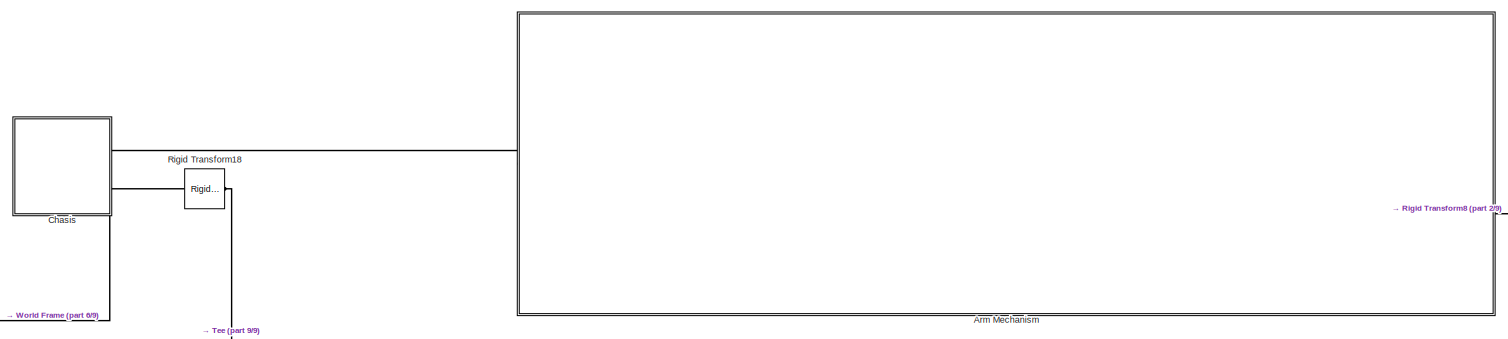
[diagram: root canvas - part 1/9, top center region]
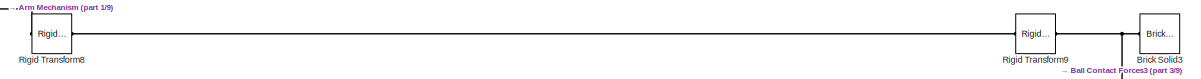
[diagram: root canvas - part 2/9, top right region]
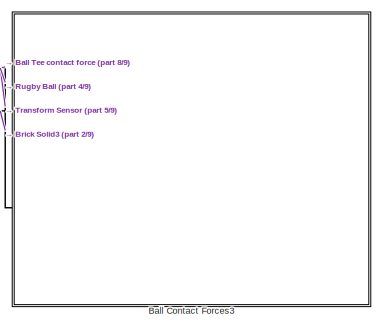
[diagram: root canvas - part 3/9, top right region]
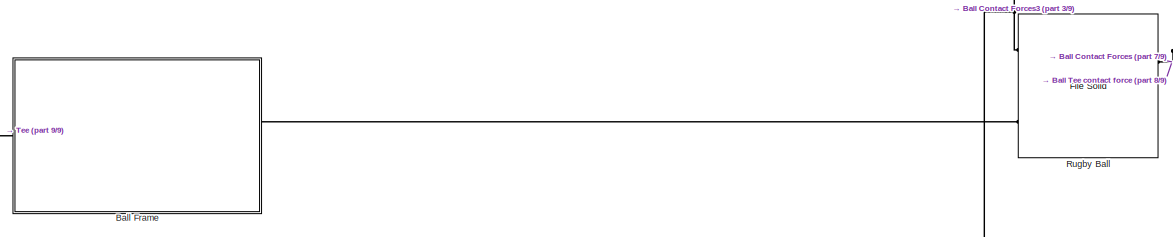
[diagram: root canvas - part 4/9, top center region]
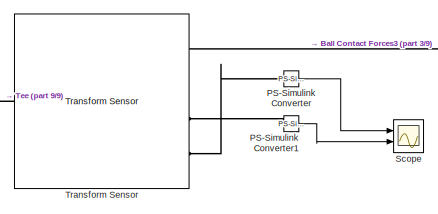
[diagram: root canvas - part 5/9, central region]
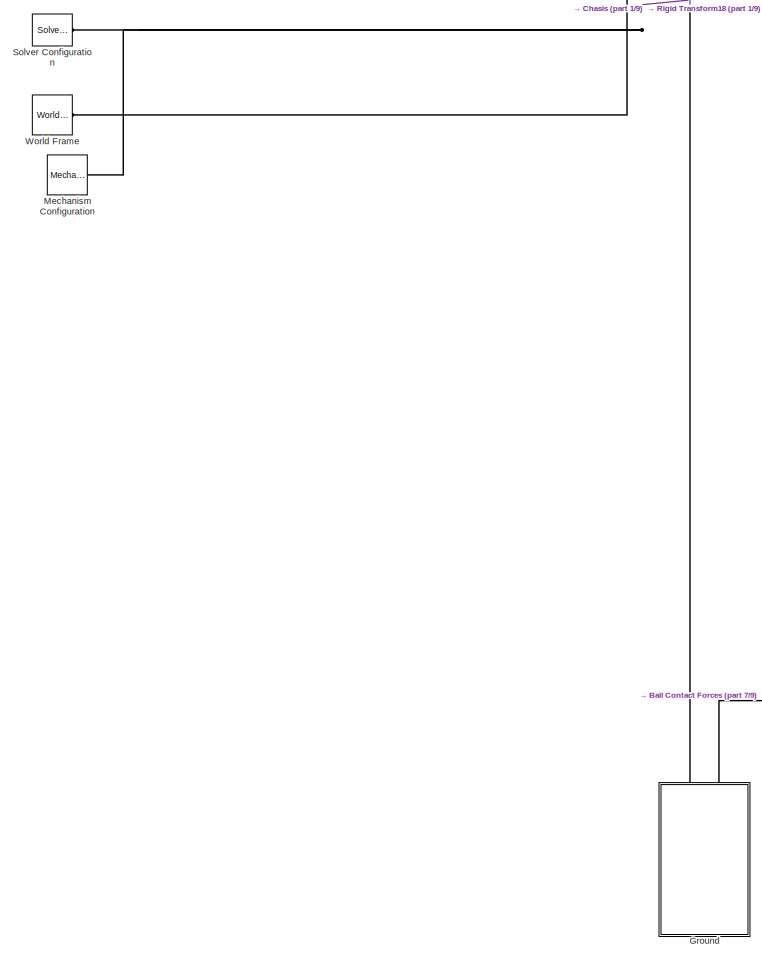
[diagram: root canvas - part 6/9, middle left region]
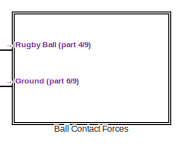
[diagram: root canvas - part 7/9, bottom right region]
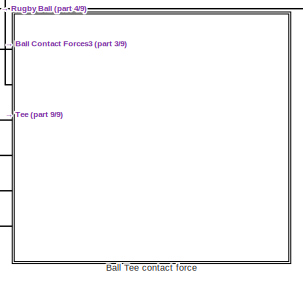
[diagram: root canvas - part 8/9, bottom center region]
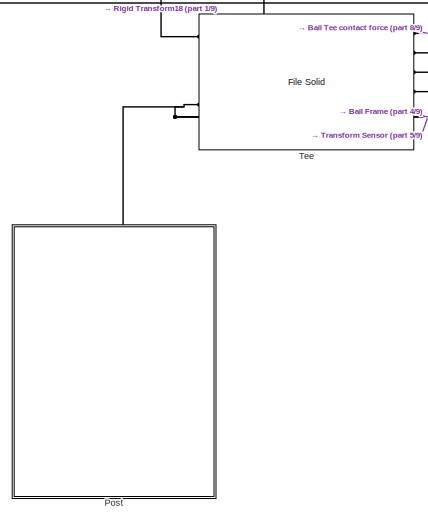
[diagram: root canvas - part 9/9, bottom left region]
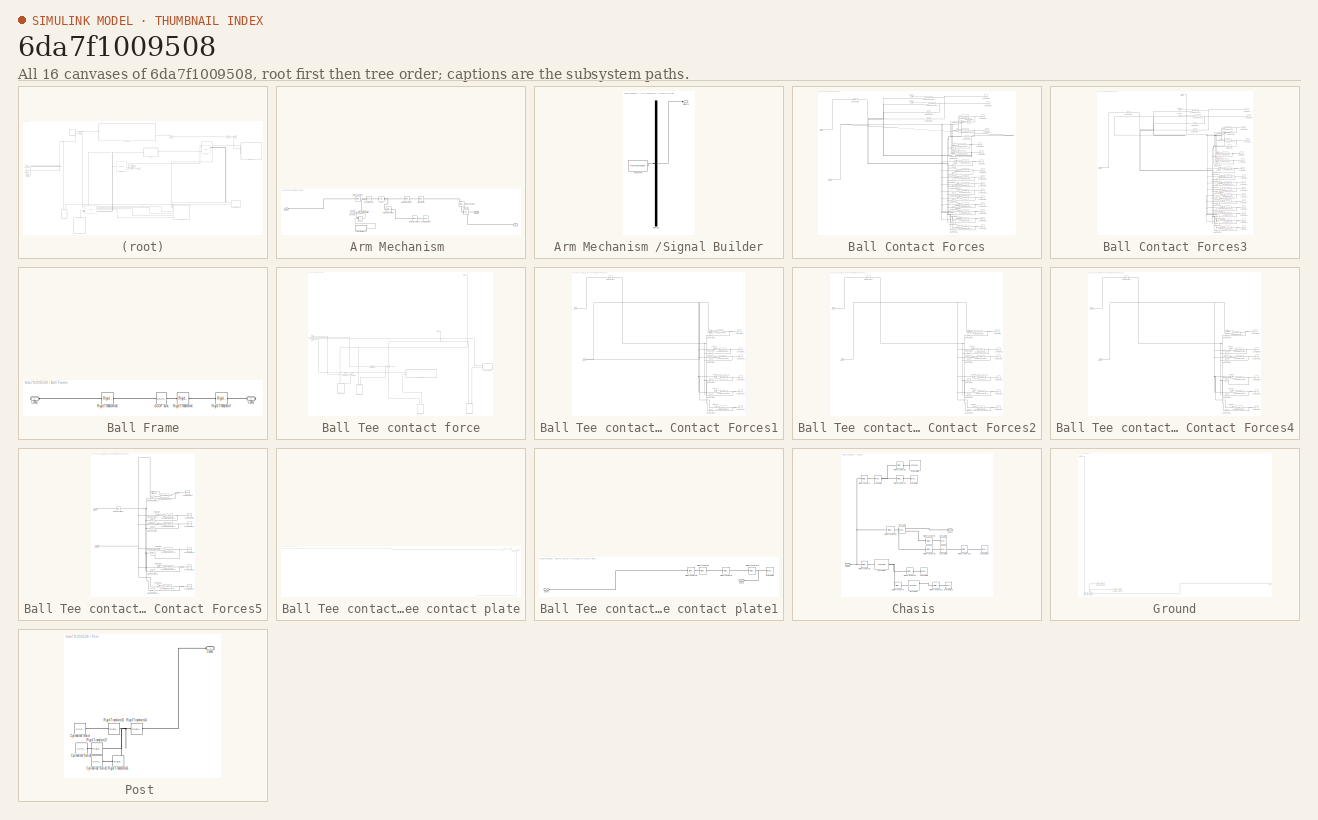
[diagram: thumbnail index - all 16 canvases of the model, root first then tree order]
MODEL slx_6da7f1009508
KIND model
CONFIG AbsTol = auto
CONFIG EnableMultiTasking = on
CONFIG FixedStep = 0.001
CONFIG MaxStep = auto
CONFIG MinStep = auto
CONFIG RelTol = 1e-3
CONFIG SampleTimeConstraint = Unconstrained
CONFIG Solver = ode3
CONFIG SolverName = ode3
CONFIG StartTime = 0.0
CONFIG StopTime = 5
BLOCK [SubSystem] Arm Mechanism 
  Ports = [0, 0, 0, 0, 0, 1, 2]
  RequestExecContextInheritance = off
BLOCK [Reference] Arm Mechanism /Axel  REF=sm_lib/Body Elements/Cylindrical Solid
  NameLocation = top
  Ports = [0, 0, 0, 0, 0, 1, 1]
  SourceBlock = sm_lib/Body Elements/Cylindrical Solid
  SourceProductBaseCode = MS
  SourceType = Cylindrical Solid
BLOCK [Reference] Arm Mechanism /Brick Solid4  REF=sm_lib/Body Elements/Brick Solid
  NameLocation = top
  Ports = [0, 0, 0, 0, 0, 1, 1]
  SourceBlock = sm_lib/Body Elements/Brick Solid
  SourceProductBaseCode = MS
  SourceType = Brick Solid
BLOCK [PMIOPort] Arm Mechanism /Conn1
  Side = Left
BLOCK [PMIOPort] Arm Mechanism /Conn2
  Port = 2
  Side = Right
BLOCK [PMIOPort] Arm Mechanism /Conn3
  Port = 3
  Side = Right
BLOCK [Constant] Arm Mechanism /Constant
  Value = torque
BLOCK [Reference] Arm Mechanism /Cylindrical Solid3  REF=sm_lib/Body Elements/Cylindrical Solid
  NameLocation = top
  Ports = [0, 0, 0, 0, 0, 0, 1]
  SourceBlock = sm_lib/Body Elements/Cylindrical Solid
  SourceProductBaseCode = MS
  SourceType = Cylindrical Solid
BLOCK [Reference] Arm Mechanism /File Solid1  REF=sm_lib/Body Elements/File Solid
  Ports = [0, 0, 0, 0, 0, 1, 1]
  SourceBlock = sm_lib/Body Elements/File Solid
  SourceProductBaseCode = MS
  SourceType = File Solid
BLOCK [Product] Arm Mechanism /Product
  Ports = [2, 1]
BLOCK [Reference] Arm Mechanism /Revolute Joint  REF=sm_lib/Joints/Revolute Joint
  Ports = [0, 0, 0, 0, 0, 2, 1]
  SourceBlock = sm_lib/Joints/Revolute Joint
  SourceProductBaseCode = MS
  SourceType = Revolute Joint
BLOCK [Reference] Arm Mechanism /Rigid Transform19  REF=sm_lib/Frames and
Transforms/Rigid
Transform
  Ports = [0, 0, 0, 0, 0, 1, 1]
  SourceBlock = sm_lib/Frames and\nTransforms/Rigid\nTransform
  SourceProductBaseCode = MS
  SourceType = Rigid\nTransform
BLOCK [Reference] Arm Mechanism /Rigid Transform20  REF=sm_lib/Frames and
Transforms/Rigid
Transform
  Ports = [0, 0, 0, 0, 0, 1, 1]
  SourceBlock = sm_lib/Frames and\nTransforms/Rigid\nTransform
  SourceProductBaseCode = MS
  SourceType = Rigid\nTransform
BLOCK [Reference] Arm Mechanism /Rigid Transform21  REF=sm_lib/Frames and
Transforms/Rigid
Transform
  NameLocation = left
  Ports = [0, 0, 0, 0, 0, 1, 1]
  SourceBlock = sm_lib/Frames and\nTransforms/Rigid\nTransform
  SourceProductBaseCode = MS
  SourceType = Rigid\nTransform
BLOCK [Reference] Arm Mechanism /Rigid Transform22  REF=sm_lib/Frames and
Transforms/Rigid
Transform
  Ports = [0, 0, 0, 0, 0, 1, 1]
  SourceBlock = sm_lib/Frames and\nTransforms/Rigid\nTransform
  SourceProductBaseCode = MS
  SourceType = Rigid\nTransform
BLOCK [Reference] Arm Mechanism /Rigid Transform23  REF=sm_lib/Frames and
Transforms/Rigid
Transform
  Ports = [0, 0, 0, 0, 0, 1, 1]
  SourceBlock = sm_lib/Frames and\nTransforms/Rigid\nTransform
  SourceProductBaseCode = MS
  SourceType = Rigid\nTransform
BLOCK [SubSystem] Arm Mechanism /Signal Builder
  ClipboardFcn = sigbuilder_block('clipboard');
  CloseFcn = sigbuilder_block('close');
  ContinueFcn = sigbuilder_block('continue');
  CopyFcn = sigbuilder_block('copy');
  DeleteFcn = sigbuilder_block('delete');
  LoadFcn = sigbuilder_block('load');
  MaskHideContents = on
  ModelCloseFcn = sigbuilder_block('modelClose');
  NameChangeFcn = sigbuilder_block('namechange');
  OpenFcn = sigbuilder_block('open',[437.6 199.2 550.4 400 ]);
  PauseFcn = sigbuilder_block('pause');
  Ports = [0, 1]
  PreSaveFcn = sigbuilder_block('preSave');
  RequestExecContextInheritance = off
  StartFcn = sigbuilder_block('start');
  StopFcn = sigbuilder_block('stop');
  Tag = STV Subsys
BLOCK [Demux] Arm Mechanism /Signal Builder/Demux
  DisplayOption = none
  Outputs = 1
  Ports = [1, 1]
  Tag = STV Demux
BLOCK [FromWorkspace] Arm Mechanism /Signal Builder/FromWs
  Tag = STV FromWs
  VariableName = tuvar
BLOCK [Outport] Arm Mechanism /Signal Builder/Signal 1
  Tag = STV Outport
BLOCK [Reference] Arm Mechanism /Simulink-PS Converter  REF=nesl_utility/Simulink-PS
Converter
  Ports = [1, 0, 0, 0, 0, 0, 1]
  SourceBlock = nesl_utility/Simulink-PS\nConverter
  SourceProductBaseCode = SS
  SourceType = Simulink-PS\nConverter
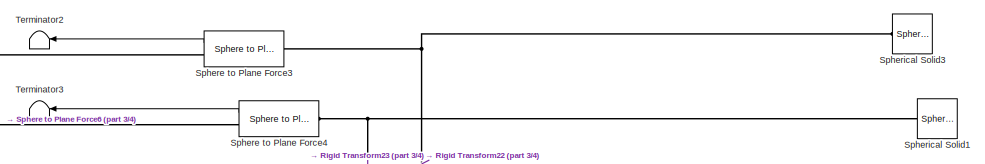
[diagram: Ball Contact Forces - part 1/4, top center region]
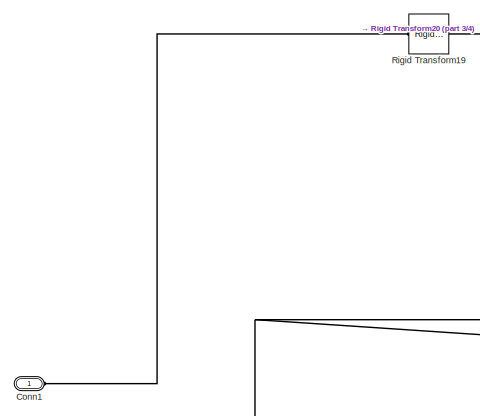
[diagram: Ball Contact Forces - part 2/4, top left region]
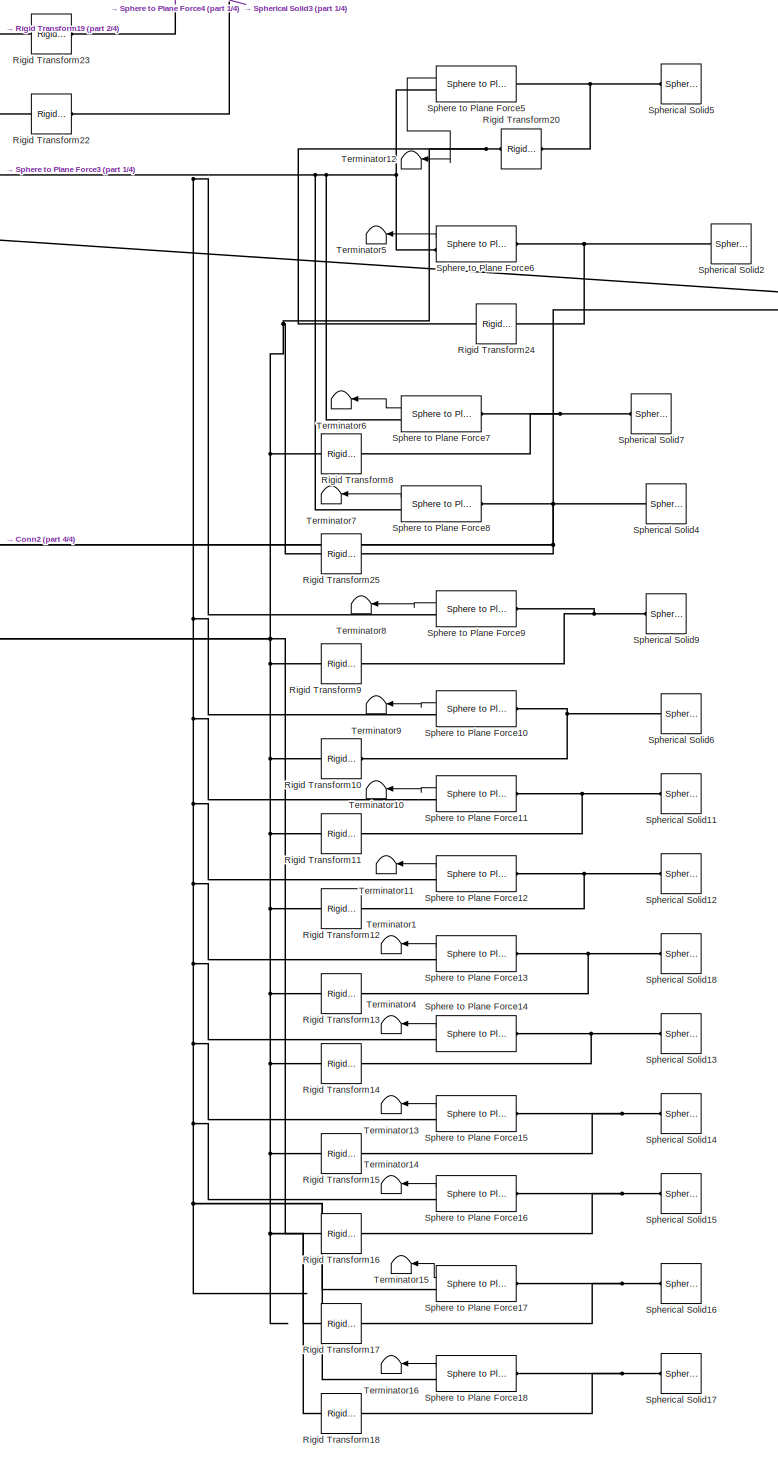
[diagram: Ball Contact Forces - part 3/4, right side, full height]
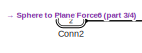
[diagram: Ball Contact Forces - part 4/4, middle left region]
BLOCK [SubSystem] Ball Contact Forces
  Ports = [0, 0, 0, 0, 0, 2]
  RequestExecContextInheritance = off
BLOCK [PMIOPort] Ball Contact Forces/Conn1
  Side = Left
BLOCK [PMIOPort] Ball Contact Forces/Conn2
  Port = 2
  Side = Left
BLOCK [Reference] Ball Contact Forces/Rigid Transform10  REF=sm_lib/Frames and
Transforms/Rigid
Transform
  Ports = [0, 0, 0, 0, 0, 1, 1]
  SourceBlock = sm_lib/Frames and\nTransforms/Rigid\nTransform
  SourceProductBaseCode = MS
  SourceType = Rigid\nTransform
BLOCK [Reference] Ball Contact Forces/Rigid Transform11  REF=sm_lib/Frames and
Transforms/Rigid
Transform
  Ports = [0, 0, 0, 0, 0, 1, 1]
  SourceBlock = sm_lib/Frames and\nTransforms/Rigid\nTransform
  SourceProductBaseCode = MS
  SourceType = Rigid\nTransform
BLOCK [Reference] Ball Contact Forces/Rigid Transform12  REF=sm_lib/Frames and
Transforms/Rigid
Transform
  Ports = [0, 0, 0, 0, 0, 1, 1]
  SourceBlock = sm_lib/Frames and\nTransforms/Rigid\nTransform
  SourceProductBaseCode = MS
  SourceType = Rigid\nTransform
BLOCK [Reference] Ball Contact Forces/Rigid Transform13  REF=sm_lib/Frames and
Transforms/Rigid
Transform
  Ports = [0, 0, 0, 0, 0, 1, 1]
  SourceBlock = sm_lib/Frames and\nTransforms/Rigid\nTransform
  SourceProductBaseCode = MS
  SourceType = Rigid\nTransform
BLOCK [Reference] Ball Contact Forces/Rigid Transform14  REF=sm_lib/Frames and
Transforms/Rigid
Transform
  Ports = [0, 0, 0, 0, 0, 1, 1]
  SourceBlock = sm_lib/Frames and\nTransforms/Rigid\nTransform
  SourceProductBaseCode = MS
  SourceType = Rigid\nTransform
BLOCK [Reference] Ball Contact Forces/Rigid Transform15  REF=sm_lib/Frames and
Transforms/Rigid
Transform
  Ports = [0, 0, 0, 0, 0, 1, 1]
  SourceBlock = sm_lib/Frames and\nTransforms/Rigid\nTransform
  SourceProductBaseCode = MS
  SourceType = Rigid\nTransform
BLOCK [Reference] Ball Contact Forces/Rigid Transform16  REF=sm_lib/Frames and
Transforms/Rigid
Transform
  Ports = [0, 0, 0, 0, 0, 1, 1]
  SourceBlock = sm_lib/Frames and\nTransforms/Rigid\nTransform
  SourceProductBaseCode = MS
  SourceType = Rigid\nTransform
BLOCK [Reference] Ball Contact Forces/Rigid Transform17  REF=sm_lib/Frames and
Transforms/Rigid
Transform
  Ports = [0, 0, 0, 0, 0, 1, 1]
  SourceBlock = sm_lib/Frames and\nTransforms/Rigid\nTransform
  SourceProductBaseCode = MS
  SourceType = Rigid\nTransform
BLOCK [Reference] Ball Contact Forces/Rigid Transform18  REF=sm_lib/Frames and
Transforms/Rigid
Transform
  Ports = [0, 0, 0, 0, 0, 1, 1]
  SourceBlock = sm_lib/Frames and\nTransforms/Rigid\nTransform
  SourceProductBaseCode = MS
  SourceType = Rigid\nTransform
BLOCK [Reference] Ball Contact Forces/Rigid Transform19  REF=sm_lib/Frames and
Transforms/Rigid
Transform
  Ports = [0, 0, 0, 0, 0, 1, 1]
  SourceBlock = sm_lib/Frames and\nTransforms/Rigid\nTransform
  SourceProductBaseCode = MS
  SourceType = Rigid\nTransform
BLOCK [Reference] Ball Contact Forces/Rigid Transform20  REF=sm_lib/Frames and
Transforms/Rigid
Transform
  Ports = [0, 0, 0, 0, 0, 1, 1]
  SourceBlock = sm_lib/Frames and\nTransforms/Rigid\nTransform
  SourceProductBaseCode = MS
  SourceType = Rigid\nTransform
BLOCK [Reference] Ball Contact Forces/Rigid Transform22  REF=sm_lib/Frames and
Transforms/Rigid
Transform
  Ports = [0, 0, 0, 0, 0, 1, 1]
  SourceBlock = sm_lib/Frames and\nTransforms/Rigid\nTransform
  SourceProductBaseCode = MS
  SourceType = Rigid\nTransform
BLOCK [Reference] Ball Contact Forces/Rigid Transform23  REF=sm_lib/Frames and
Transforms/Rigid
Transform
  Ports = [0, 0, 0, 0, 0, 1, 1]
  SourceBlock = sm_lib/Frames and\nTransforms/Rigid\nTransform
  SourceProductBaseCode = MS
  SourceType = Rigid\nTransform
BLOCK [Reference] Ball Contact Forces/Rigid Transform24  REF=sm_lib/Frames and
Transforms/Rigid
Transform
  Ports = [0, 0, 0, 0, 0, 1, 1]
  SourceBlock = sm_lib/Frames and\nTransforms/Rigid\nTransform
  SourceProductBaseCode = MS
  SourceType = Rigid\nTransform
BLOCK [Reference] Ball Contact Forces/Rigid Transform25  REF=sm_lib/Frames and
Transforms/Rigid
Transform
  Ports = [0, 0, 0, 0, 0, 1, 1]
  SourceBlock = sm_lib/Frames and\nTransforms/Rigid\nTransform
  SourceProductBaseCode = MS
  SourceType = Rigid\nTransform
BLOCK [Reference] Ball Contact Forces/Rigid Transform8  REF=sm_lib/Frames and
Transforms/Rigid
Transform
  Ports = [0, 0, 0, 0, 0, 1, 1]
  SourceBlock = sm_lib/Frames and\nTransforms/Rigid\nTransform
  SourceProductBaseCode = MS
  SourceType = Rigid\nTransform
BLOCK [Reference] Ball Contact Forces/Rigid Transform9  REF=sm_lib/Frames and
Transforms/Rigid
Transform
  Ports = [0, 0, 0, 0, 0, 1, 1]
  SourceBlock = sm_lib/Frames and\nTransforms/Rigid\nTransform
  SourceProductBaseCode = MS
  SourceType = Rigid\nTransform
BLOCK [Reference] Ball Contact Forces/Sphere to Plane Force10  REF=Contact_Forces_Lib/3D/Sphere to Plane Force
  Ports = [0, 1, 0, 0, 0, 1, 1]
  SourceBlock = Contact_Forces_Lib/3D/Sphere to Plane Force
  SourceProductName = Simscape Multibody Contact Forces Library
  SourceType = Sphere to Plane Force
BLOCK [Reference] Ball Contact Forces/Sphere to Plane Force11  REF=Contact_Forces_Lib/3D/Sphere to Plane Force
  Ports = [0, 1, 0, 0, 0, 1, 1]
  SourceBlock = Contact_Forces_Lib/3D/Sphere to Plane Force
  SourceProductName = Simscape Multibody Contact Forces Library
  SourceType = Sphere to Plane Force
BLOCK [Reference] Ball Contact Forces/Sphere to Plane Force12  REF=Contact_Forces_Lib/3D/Sphere to Plane Force
  Ports = [0, 1, 0, 0, 0, 1, 1]
  SourceBlock = Contact_Forces_Lib/3D/Sphere to Plane Force
  SourceProductName = Simscape Multibody Contact Forces Library
  SourceType = Sphere to Plane Force
BLOCK [Reference] Ball Contact Forces/Sphere to Plane Force13  REF=Contact_Forces_Lib/3D/Sphere to Plane Force
  Ports = [0, 1, 0, 0, 0, 1, 1]
  SourceBlock = Contact_Forces_Lib/3D/Sphere to Plane Force
  SourceProductName = Simscape Multibody Contact Forces Library
  SourceType = Sphere to Plane Force
BLOCK [Reference] Ball Contact Forces/Sphere to Plane Force14  REF=Contact_Forces_Lib/3D/Sphere to Plane Force
  Ports = [0, 1, 0, 0, 0, 1, 1]
  SourceBlock = Contact_Forces_Lib/3D/Sphere to Plane Force
  SourceProductName = Simscape Multibody Contact Forces Library
  SourceType = Sphere to Plane Force
BLOCK [Reference] Ball Contact Forces/Sphere to Plane Force15  REF=Contact_Forces_Lib/3D/Sphere to Plane Force
  Ports = [0, 1, 0, 0, 0, 1, 1]
  SourceBlock = Contact_Forces_Lib/3D/Sphere to Plane Force
  SourceProductName = Simscape Multibody Contact Forces Library
  SourceType = Sphere to Plane Force
BLOCK [Reference] Ball Contact Forces/Sphere to Plane Force16  REF=Contact_Forces_Lib/3D/Sphere to Plane Force
  Ports = [0, 1, 0, 0, 0, 1, 1]
  SourceBlock = Contact_Forces_Lib/3D/Sphere to Plane Force
  SourceProductName = Simscape Multibody Contact Forces Library
  SourceType = Sphere to Plane Force
BLOCK [Reference] Ball Contact Forces/Sphere to Plane Force17  REF=Contact_Forces_Lib/3D/Sphere to Plane Force
  Ports = [0, 1, 0, 0, 0, 1, 1]
  SourceBlock = Contact_Forces_Lib/3D/Sphere to Plane Force
  SourceProductName = Simscape Multibody Contact Forces Library
  SourceType = Sphere to Plane Force
BLOCK [Reference] Ball Contact Forces/Sphere to Plane Force18  REF=Contact_Forces_Lib/3D/Sphere to Plane Force
  Ports = [0, 1, 0, 0, 0, 1, 1]
  SourceBlock = Contact_Forces_Lib/3D/Sphere to Plane Force
  SourceProductName = Simscape Multibody Contact Forces Library
  SourceType = Sphere to Plane Force
BLOCK [Reference] Ball Contact Forces/Sphere to Plane Force3  REF=Contact_Forces_Lib/3D/Sphere to Plane Force
  Ports = [0, 1, 0, 0, 0, 1, 1]
  SourceBlock = Contact_Forces_Lib/3D/Sphere to Plane Force
  SourceProductName = Simscape Multibody Contact Forces Library
  SourceType = Sphere to Plane Force
BLOCK [Reference] Ball Contact Forces/Sphere to Plane Force4  REF=Contact_Forces_Lib/3D/Sphere to Plane Force
  Ports = [0, 1, 0, 0, 0, 1, 1]
  SourceBlock = Contact_Forces_Lib/3D/Sphere to Plane Force
  SourceProductName = Simscape Multibody Contact Forces Library
  SourceType = Sphere to Plane Force
BLOCK [Reference] Ball Contact Forces/Sphere to Plane Force5  REF=Contact_Forces_Lib/3D/Sphere to Plane Force
  Ports = [0, 1, 0, 0, 0, 1, 1]
  SourceBlock = Contact_Forces_Lib/3D/Sphere to Plane Force
  SourceProductName = Simscape Multibody Contact Forces Library
  SourceType = Sphere to Plane Force
BLOCK [Reference] Ball Contact Forces/Sphere to Plane Force6  REF=Contact_Forces_Lib/3D/Sphere to Plane Force
  Ports = [0, 1, 0, 0, 0, 1, 1]
  SourceBlock = Contact_Forces_Lib/3D/Sphere to Plane Force
  SourceProductName = Simscape Multibody Contact Forces Library
  SourceType = Sphere to Plane Force
BLOCK [Reference] Ball Contact Forces/Sphere to Plane Force7  REF=Contact_Forces_Lib/3D/Sphere to Plane Force
  Ports = [0, 1, 0, 0, 0, 1, 1]
  SourceBlock = Contact_Forces_Lib/3D/Sphere to Plane Force
  SourceProductName = Simscape Multibody Contact Forces Library
  SourceType = Sphere to Plane Force
BLOCK [Reference] Ball Contact Forces/Sphere to Plane Force8  REF=Contact_Forces_Lib/3D/Sphere to Plane Force
  Ports = [0, 1, 0, 0, 0, 1, 1]
  SourceBlock = Contact_Forces_Lib/3D/Sphere to Plane Force
  SourceProductName = Simscape Multibody Contact Forces Library
  SourceType = Sphere to Plane Force
BLOCK [Reference] Ball Contact Forces/Sphere to Plane Force9  REF=Contact_Forces_Lib/3D/Sphere to Plane Force
  Ports = [0, 1, 0, 0, 0, 1, 1]
  SourceBlock = Contact_Forces_Lib/3D/Sphere to Plane Force
  SourceProductName = Simscape Multibody Contact Forces Library
  SourceType = Sphere to Plane Force
BLOCK [Reference] Ball Contact Forces/Spherical Solid1  REF=sm_lib/Body Elements/Spherical Solid
  Commented = on
  NameLocation = top
  Ports = [0, 0, 0, 0, 0, 0, 1]
  SourceBlock = sm_lib/Body Elements/Spherical Solid
  SourceProductBaseCode = MS
  SourceType = Spherical Solid
BLOCK [Reference] Ball Contact Forces/Spherical Solid11  REF=sm_lib/Body Elements/Spherical Solid
  Commented = on
  NameLocation = top
  Ports = [0, 0, 0, 0, 0, 0, 1]
  SourceBlock = sm_lib/Body Elements/Spherical Solid
  SourceProductBaseCode = MS
  SourceType = Spherical Solid
BLOCK [Reference] Ball Contact Forces/Spherical Solid12  REF=sm_lib/Body Elements/Spherical Solid
  Commented = on
  NameLocation = top
  Ports = [0, 0, 0, 0, 0, 0, 1]
  SourceBlock = sm_lib/Body Elements/Spherical Solid
  SourceProductBaseCode = MS
  SourceType = Spherical Solid
BLOCK [Reference] Ball Contact Forces/Spherical Solid13  REF=sm_lib/Body Elements/Spherical Solid
  Commented = on
  NameLocation = top
  Ports = [0, 0, 0, 0, 0, 0, 1]
  SourceBlock = sm_lib/Body Elements/Spherical Solid
  SourceProductBaseCode = MS
  SourceType = Spherical Solid
BLOCK [Reference] Ball Contact Forces/Spherical Solid14  REF=sm_lib/Body Elements/Spherical Solid
  Commented = on
  NameLocation = top
  Ports = [0, 0, 0, 0, 0, 0, 1]
  SourceBlock = sm_lib/Body Elements/Spherical Solid
  SourceProductBaseCode = MS
  SourceType = Spherical Solid
BLOCK [Reference] Ball Contact Forces/Spherical Solid15  REF=sm_lib/Body Elements/Spherical Solid
  Commented = on
  NameLocation = top
  Ports = [0, 0, 0, 0, 0, 0, 1]
  SourceBlock = sm_lib/Body Elements/Spherical Solid
  SourceProductBaseCode = MS
  SourceType = Spherical Solid
BLOCK [Reference] Ball Contact Forces/Spherical Solid16  REF=sm_lib/Body Elements/Spherical Solid
  Commented = on
  NameLocation = top
  Ports = [0, 0, 0, 0, 0, 0, 1]
  SourceBlock = sm_lib/Body Elements/Spherical Solid
  SourceProductBaseCode = MS
  SourceType = Spherical Solid
BLOCK [Reference] Ball Contact Forces/Spherical Solid17  REF=sm_lib/Body Elements/Spherical Solid
  Commented = on
  NameLocation = top
  Ports = [0, 0, 0, 0, 0, 0, 1]
  SourceBlock = sm_lib/Body Elements/Spherical Solid
  SourceProductBaseCode = MS
  SourceType = Spherical Solid
BLOCK [Reference] Ball Contact Forces/Spherical Solid18  REF=sm_lib/Body Elements/Spherical Solid
  Commented = on
  NameLocation = top
  Ports = [0, 0, 0, 0, 0, 0, 1]
  SourceBlock = sm_lib/Body Elements/Spherical Solid
  SourceProductBaseCode = MS
  SourceType = Spherical Solid
BLOCK [Reference] Ball Contact Forces/Spherical Solid2  REF=sm_lib/Body Elements/Spherical Solid
  Commented = on
  NameLocation = top
  Ports = [0, 0, 0, 0, 0, 0, 1]
  SourceBlock = sm_lib/Body Elements/Spherical Solid
  SourceProductBaseCode = MS
  SourceType = Spherical Solid
BLOCK [Reference] Ball Contact Forces/Spherical Solid3  REF=sm_lib/Body Elements/Spherical Solid
  Commented = on
  NameLocation = top
  Ports = [0, 0, 0, 0, 0, 0, 1]
  SourceBlock = sm_lib/Body Elements/Spherical Solid
  SourceProductBaseCode = MS
  SourceType = Spherical Solid
BLOCK [Reference] Ball Contact Forces/Spherical Solid4  REF=sm_lib/Body Elements/Spherical Solid
  Commented = on
  NameLocation = top
  Ports = [0, 0, 0, 0, 0, 0, 1]
  SourceBlock = sm_lib/Body Elements/Spherical Solid
  SourceProductBaseCode = MS
  SourceType = Spherical Solid
BLOCK [Reference] Ball Contact Forces/Spherical Solid5  REF=sm_lib/Body Elements/Spherical Solid
  Commented = on
  NameLocation = top
  Ports = [0, 0, 0, 0, 0, 0, 1]
  SourceBlock = sm_lib/Body Elements/Spherical Solid
  SourceProductBaseCode = MS
  SourceType = Spherical Solid
BLOCK [Reference] Ball Contact Forces/Spherical Solid6  REF=sm_lib/Body Elements/Spherical Solid
  Commented = on
  NameLocation = top
  Ports = [0, 0, 0, 0, 0, 0, 1]
  SourceBlock = sm_lib/Body Elements/Spherical Solid
  SourceProductBaseCode = MS
  SourceType = Spherical Solid
BLOCK [Reference] Ball Contact Forces/Spherical Solid7  REF=sm_lib/Body Elements/Spherical Solid
  Commented = on
  NameLocation = top
  Ports = [0, 0, 0, 0, 0, 0, 1]
  SourceBlock = sm_lib/Body Elements/Spherical Solid
  SourceProductBaseCode = MS
  SourceType = Spherical Solid
BLOCK [Reference] Ball Contact Forces/Spherical Solid9  REF=sm_lib/Body Elements/Spherical Solid
  Commented = on
  NameLocation = top
  Ports = [0, 0, 0, 0, 0, 0, 1]
  SourceBlock = sm_lib/Body Elements/Spherical Solid
  SourceProductBaseCode = MS
  SourceType = Spherical Solid
BLOCK [Terminator] Ball Contact Forces/Terminator1
  NameLocation = top
BLOCK [Terminator] Ball Contact Forces/Terminator10
  NameLocation = top
BLOCK [Terminator] Ball Contact Forces/Terminator11
  NameLocation = top
BLOCK [Terminator] Ball Contact Forces/Terminator12
  NameLocation = top
BLOCK [Terminator] Ball Contact Forces/Terminator13
  NameLocation = top
BLOCK [Terminator] Ball Contact Forces/Terminator14
  NameLocation = top
BLOCK [Terminator] Ball Contact Forces/Terminator15
  NameLocation = top
BLOCK [Terminator] Ball Contact Forces/Terminator16
  NameLocation = top
BLOCK [Terminator] Ball Contact Forces/Terminator2
  NameLocation = top
BLOCK [Terminator] Ball Contact Forces/Terminator3
  NameLocation = top
BLOCK [Terminator] Ball Contact Forces/Terminator4
  NameLocation = top
BLOCK [Terminator] Ball Contact Forces/Terminator5
  NameLocation = top
BLOCK [Terminator] Ball Contact Forces/Terminator6
  NameLocation = top
BLOCK [Terminator] Ball Contact Forces/Terminator7
  NameLocation = top
BLOCK [Terminator] Ball Contact Forces/Terminator8
  NameLocation = top
BLOCK [Terminator] Ball Contact Forces/Terminator9
  NameLocation = top
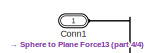
[diagram: Ball Contact Forces3 - part 1/4, top center region]
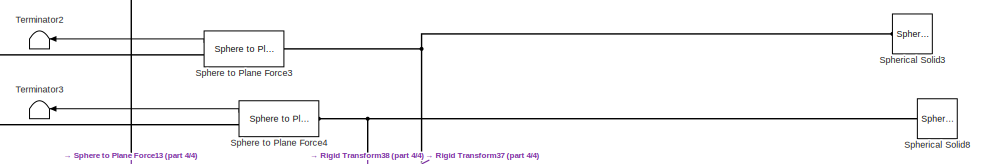
[diagram: Ball Contact Forces3 - part 2/4, top right region]
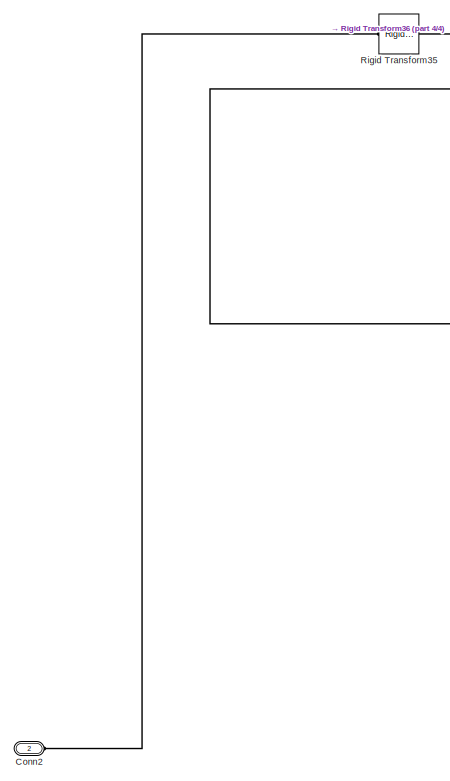
[diagram: Ball Contact Forces3 - part 3/4, middle left region]
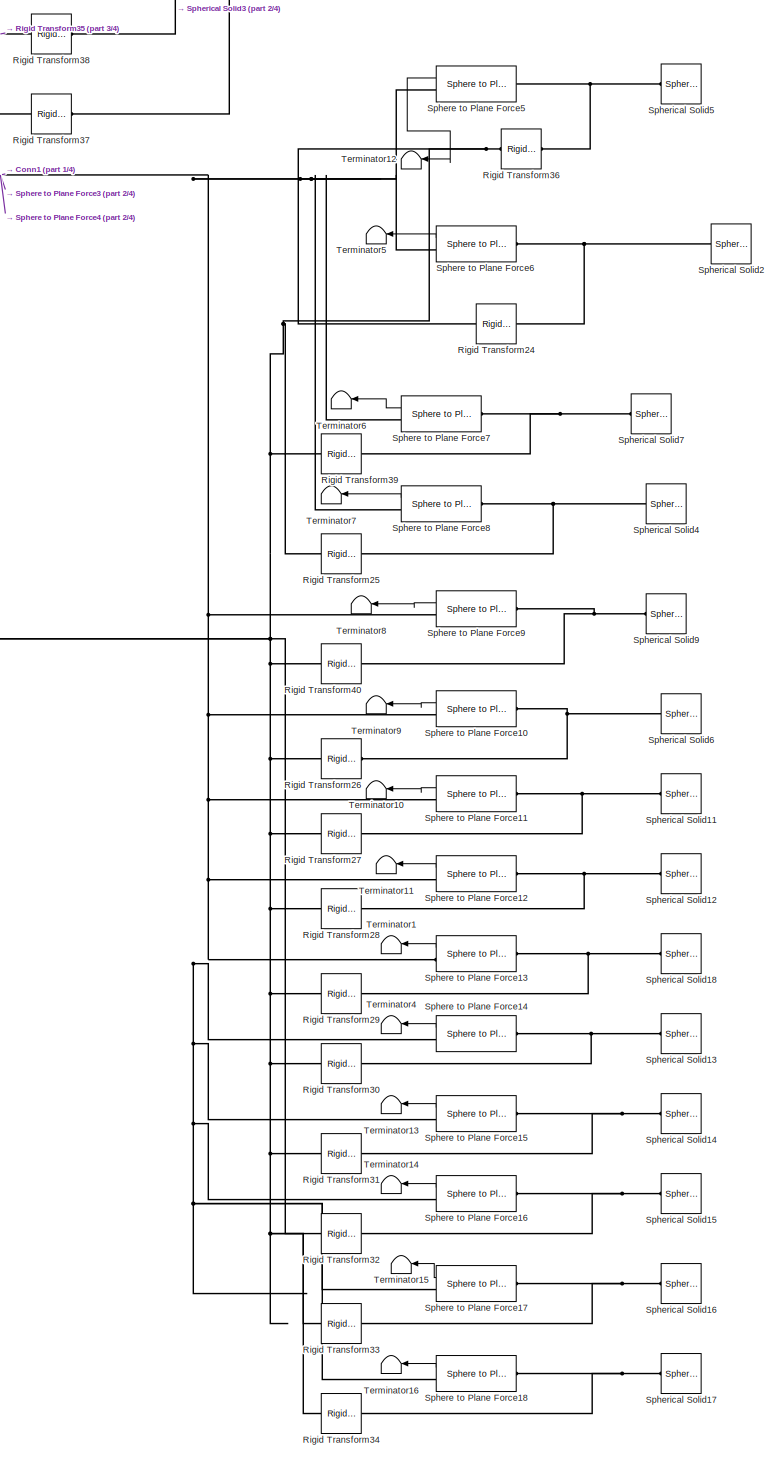
[diagram: Ball Contact Forces3 - part 4/4, right side, full height]
BLOCK [SubSystem] Ball Contact Forces3
  Ports = [0, 0, 0, 0, 0, 2]
  RequestExecContextInheritance = off
BLOCK [PMIOPort] Ball Contact Forces3/Conn1
  Side = Left
BLOCK [PMIOPort] Ball Contact Forces3/Conn2
  Port = 2
  Side = Left
BLOCK [Reference] Ball Contact Forces3/Rigid Transform24  REF=sm_lib/Frames and
Transforms/Rigid
Transform
  Ports = [0, 0, 0, 0, 0, 1, 1]
  SourceBlock = sm_lib/Frames and\nTransforms/Rigid\nTransform
  SourceProductBaseCode = MS
  SourceType = Rigid\nTransform
BLOCK [Reference] Ball Contact Forces3/Rigid Transform25  REF=sm_lib/Frames and
Transforms/Rigid
Transform
  Ports = [0, 0, 0, 0, 0, 1, 1]
  SourceBlock = sm_lib/Frames and\nTransforms/Rigid\nTransform
  SourceProductBaseCode = MS
  SourceType = Rigid\nTransform
BLOCK [Reference] Ball Contact Forces3/Rigid Transform26  REF=sm_lib/Frames and
Transforms/Rigid
Transform
  Ports = [0, 0, 0, 0, 0, 1, 1]
  SourceBlock = sm_lib/Frames and\nTransforms/Rigid\nTransform
  SourceProductBaseCode = MS
  SourceType = Rigid\nTransform
BLOCK [Reference] Ball Contact Forces3/Rigid Transform27  REF=sm_lib/Frames and
Transforms/Rigid
Transform
  Ports = [0, 0, 0, 0, 0, 1, 1]
  SourceBlock = sm_lib/Frames and\nTransforms/Rigid\nTransform
  SourceProductBaseCode = MS
  SourceType = Rigid\nTransform
BLOCK [Reference] Ball Contact Forces3/Rigid Transform28  REF=sm_lib/Frames and
Transforms/Rigid
Transform
  Ports = [0, 0, 0, 0, 0, 1, 1]
  SourceBlock = sm_lib/Frames and\nTransforms/Rigid\nTransform
  SourceProductBaseCode = MS
  SourceType = Rigid\nTransform
BLOCK [Reference] Ball Contact Forces3/Rigid Transform29  REF=sm_lib/Frames and
Transforms/Rigid
Transform
  Ports = [0, 0, 0, 0, 0, 1, 1]
  SourceBlock = sm_lib/Frames and\nTransforms/Rigid\nTransform
  SourceProductBaseCode = MS
  SourceType = Rigid\nTransform
BLOCK [Reference] Ball Contact Forces3/Rigid Transform30  REF=sm_lib/Frames and
Transforms/Rigid
Transform
  Ports = [0, 0, 0, 0, 0, 1, 1]
  SourceBlock = sm_lib/Frames and\nTransforms/Rigid\nTransform
  SourceProductBaseCode = MS
  SourceType = Rigid\nTransform
BLOCK [Reference] Ball Contact Forces3/Rigid Transform31  REF=sm_lib/Frames and
Transforms/Rigid
Transform
  Ports = [0, 0, 0, 0, 0, 1, 1]
  SourceBlock = sm_lib/Frames and\nTransforms/Rigid\nTransform
  SourceProductBaseCode = MS
  SourceType = Rigid\nTransform
BLOCK [Reference] Ball Contact Forces3/Rigid Transform32  REF=sm_lib/Frames and
Transforms/Rigid
Transform
  Ports = [0, 0, 0, 0, 0, 1, 1]
  SourceBlock = sm_lib/Frames and\nTransforms/Rigid\nTransform
  SourceProductBaseCode = MS
  SourceType = Rigid\nTransform
BLOCK [Reference] Ball Contact Forces3/Rigid Transform33  REF=sm_lib/Frames and
Transforms/Rigid
Transform
  Ports = [0, 0, 0, 0, 0, 1, 1]
  SourceBlock = sm_lib/Frames and\nTransforms/Rigid\nTransform
  SourceProductBaseCode = MS
  SourceType = Rigid\nTransform
BLOCK [Reference] Ball Contact Forces3/Rigid Transform34  REF=sm_lib/Frames and
Transforms/Rigid
Transform
  Ports = [0, 0, 0, 0, 0, 1, 1]
  SourceBlock = sm_lib/Frames and\nTransforms/Rigid\nTransform
  SourceProductBaseCode = MS
  SourceType = Rigid\nTransform
BLOCK [Reference] Ball Contact Forces3/Rigid Transform35  REF=sm_lib/Frames and
Transforms/Rigid
Transform
  Ports = [0, 0, 0, 0, 0, 1, 1]
  SourceBlock = sm_lib/Frames and\nTransforms/Rigid\nTransform
  SourceProductBaseCode = MS
  SourceType = Rigid\nTransform
BLOCK [Reference] Ball Contact Forces3/Rigid Transform36  REF=sm_lib/Frames and
Transforms/Rigid
Transform
  Ports = [0, 0, 0, 0, 0, 1, 1]
  SourceBlock = sm_lib/Frames and\nTransforms/Rigid\nTransform
  SourceProductBaseCode = MS
  SourceType = Rigid\nTransform
BLOCK [Reference] Ball Contact Forces3/Rigid Transform37  REF=sm_lib/Frames and
Transforms/Rigid
Transform
  Ports = [0, 0, 0, 0, 0, 1, 1]
  SourceBlock = sm_lib/Frames and\nTransforms/Rigid\nTransform
  SourceProductBaseCode = MS
  SourceType = Rigid\nTransform
BLOCK [Reference] Ball Contact Forces3/Rigid Transform38  REF=sm_lib/Frames and
Transforms/Rigid
Transform
  Ports = [0, 0, 0, 0, 0, 1, 1]
  SourceBlock = sm_lib/Frames and\nTransforms/Rigid\nTransform
  SourceProductBaseCode = MS
  SourceType = Rigid\nTransform
BLOCK [Reference] Ball Contact Forces3/Rigid Transform39  REF=sm_lib/Frames and
Transforms/Rigid
Transform
  Ports = [0, 0, 0, 0, 0, 1, 1]
  SourceBlock = sm_lib/Frames and\nTransforms/Rigid\nTransform
  SourceProductBaseCode = MS
  SourceType = Rigid\nTransform
BLOCK [Reference] Ball Contact Forces3/Rigid Transform40  REF=sm_lib/Frames and
Transforms/Rigid
Transform
  Ports = [0, 0, 0, 0, 0, 1, 1]
  SourceBlock = sm_lib/Frames and\nTransforms/Rigid\nTransform
  SourceProductBaseCode = MS
  SourceType = Rigid\nTransform
BLOCK [Reference] Ball Contact Forces3/Sphere to Plane Force10  REF=Contact_Forces_Lib/3D/Sphere to Plane Force
  Ports = [0, 1, 0, 0, 0, 1, 1]
  SourceBlock = Contact_Forces_Lib/3D/Sphere to Plane Force
  SourceProductName = Simscape Multibody Contact Forces Library
  SourceType = Sphere to Plane Force
BLOCK [Reference] Ball Contact Forces3/Sphere to Plane Force11  REF=Contact_Forces_Lib/3D/Sphere to Plane Force
  Ports = [0, 1, 0, 0, 0, 1, 1]
  SourceBlock = Contact_Forces_Lib/3D/Sphere to Plane Force
  SourceProductName = Simscape Multibody Contact Forces Library
  SourceType = Sphere to Plane Force
BLOCK [Reference] Ball Contact Forces3/Sphere to Plane Force12  REF=Contact_Forces_Lib/3D/Sphere to Plane Force
  Ports = [0, 1, 0, 0, 0, 1, 1]
  SourceBlock = Contact_Forces_Lib/3D/Sphere to Plane Force
  SourceProductName = Simscape Multibody Contact Forces Library
  SourceType = Sphere to Plane Force
BLOCK [Reference] Ball Contact Forces3/Sphere to Plane Force13  REF=Contact_Forces_Lib/3D/Sphere to Plane Force
  Ports = [0, 1, 0, 0, 0, 1, 1]
  SourceBlock = Contact_Forces_Lib/3D/Sphere to Plane Force
  SourceProductName = Simscape Multibody Contact Forces Library
  SourceType = Sphere to Plane Force
BLOCK [Reference] Ball Contact Forces3/Sphere to Plane Force14  REF=Contact_Forces_Lib/3D/Sphere to Plane Force
  Ports = [0, 1, 0, 0, 0, 1, 1]
  SourceBlock = Contact_Forces_Lib/3D/Sphere to Plane Force
  SourceProductName = Simscape Multibody Contact Forces Library
  SourceType = Sphere to Plane Force
BLOCK [Reference] Ball Contact Forces3/Sphere to Plane Force15  REF=Contact_Forces_Lib/3D/Sphere to Plane Force
  Ports = [0, 1, 0, 0, 0, 1, 1]
  SourceBlock = Contact_Forces_Lib/3D/Sphere to Plane Force
  SourceProductName = Simscape Multibody Contact Forces Library
  SourceType = Sphere to Plane Force
BLOCK [Reference] Ball Contact Forces3/Sphere to Plane Force16  REF=Contact_Forces_Lib/3D/Sphere to Plane Force
  Ports = [0, 1, 0, 0, 0, 1, 1]
  SourceBlock = Contact_Forces_Lib/3D/Sphere to Plane Force
  SourceProductName = Simscape Multibody Contact Forces Library
  SourceType = Sphere to Plane Force
BLOCK [Reference] Ball Contact Forces3/Sphere to Plane Force17  REF=Contact_Forces_Lib/3D/Sphere to Plane Force
  Ports = [0, 1, 0, 0, 0, 1, 1]
  SourceBlock = Contact_Forces_Lib/3D/Sphere to Plane Force
  SourceProductName = Simscape Multibody Contact Forces Library
  SourceType = Sphere to Plane Force
BLOCK [Reference] Ball Contact Forces3/Sphere to Plane Force18  REF=Contact_Forces_Lib/3D/Sphere to Plane Force
  Ports = [0, 1, 0, 0, 0, 1, 1]
  SourceBlock = Contact_Forces_Lib/3D/Sphere to Plane Force
  SourceProductName = Simscape Multibody Contact Forces Library
  SourceType = Sphere to Plane Force
BLOCK [Reference] Ball Contact Forces3/Sphere to Plane Force3  REF=Contact_Forces_Lib/3D/Sphere to Plane Force
  Ports = [0, 1, 0, 0, 0, 1, 1]
  SourceBlock = Contact_Forces_Lib/3D/Sphere to Plane Force
  SourceProductName = Simscape Multibody Contact Forces Library
  SourceType = Sphere to Plane Force
BLOCK [Reference] Ball Contact Forces3/Sphere to Plane Force4  REF=Contact_Forces_Lib/3D/Sphere to Plane Force
  Ports = [0, 1, 0, 0, 0, 1, 1]
  SourceBlock = Contact_Forces_Lib/3D/Sphere to Plane Force
  SourceProductName = Simscape Multibody Contact Forces Library
  SourceType = Sphere to Plane Force
BLOCK [Reference] Ball Contact Forces3/Sphere to Plane Force5  REF=Contact_Forces_Lib/3D/Sphere to Plane Force
  Ports = [0, 1, 0, 0, 0, 1, 1]
  SourceBlock = Contact_Forces_Lib/3D/Sphere to Plane Force
  SourceProductName = Simscape Multibody Contact Forces Library
  SourceType = Sphere to Plane Force
BLOCK [Reference] Ball Contact Forces3/Sphere to Plane Force6  REF=Contact_Forces_Lib/3D/Sphere to Plane Force
  Ports = [0, 1, 0, 0, 0, 1, 1]
  SourceBlock = Contact_Forces_Lib/3D/Sphere to Plane Force
  SourceProductName = Simscape Multibody Contact Forces Library
  SourceType = Sphere to Plane Force
BLOCK [Reference] Ball Contact Forces3/Sphere to Plane Force7  REF=Contact_Forces_Lib/3D/Sphere to Plane Force
  Ports = [0, 1, 0, 0, 0, 1, 1]
  SourceBlock = Contact_Forces_Lib/3D/Sphere to Plane Force
  SourceProductName = Simscape Multibody Contact Forces Library
  SourceType = Sphere to Plane Force
BLOCK [Reference] Ball Contact Forces3/Sphere to Plane Force8  REF=Contact_Forces_Lib/3D/Sphere to Plane Force
  Ports = [0, 1, 0, 0, 0, 1, 1]
  SourceBlock = Contact_Forces_Lib/3D/Sphere to Plane Force
  SourceProductName = Simscape Multibody Contact Forces Library
  SourceType = Sphere to Plane Force
BLOCK [Reference] Ball Contact Forces3/Sphere to Plane Force9  REF=Contact_Forces_Lib/3D/Sphere to Plane Force
  Ports = [0, 1, 0, 0, 0, 1, 1]
  SourceBlock = Contact_Forces_Lib/3D/Sphere to Plane Force
  SourceProductName = Simscape Multibody Contact Forces Library
  SourceType = Sphere to Plane Force
BLOCK [Reference] Ball Contact Forces3/Spherical Solid11  REF=sm_lib/Body Elements/Spherical Solid
  Commented = on
  NameLocation = top
  Ports = [0, 0, 0, 0, 0, 0, 1]
  SourceBlock = sm_lib/Body Elements/Spherical Solid
  SourceProductBaseCode = MS
  SourceType = Spherical Solid
BLOCK [Reference] Ball Contact Forces3/Spherical Solid12  REF=sm_lib/Body Elements/Spherical Solid
  Commented = on
  NameLocation = top
  Ports = [0, 0, 0, 0, 0, 0, 1]
  SourceBlock = sm_lib/Body Elements/Spherical Solid
  SourceProductBaseCode = MS
  SourceType = Spherical Solid
BLOCK [Reference] Ball Contact Forces3/Spherical Solid13  REF=sm_lib/Body Elements/Spherical Solid
  Commented = on
  NameLocation = top
  Ports = [0, 0, 0, 0, 0, 0, 1]
  SourceBlock = sm_lib/Body Elements/Spherical Solid
  SourceProductBaseCode = MS
  SourceType = Spherical Solid
BLOCK [Reference] Ball Contact Forces3/Spherical Solid14  REF=sm_lib/Body Elements/Spherical Solid
  Commented = on
  NameLocation = top
  Ports = [0, 0, 0, 0, 0, 0, 1]
  SourceBlock = sm_lib/Body Elements/Spherical Solid
  SourceProductBaseCode = MS
  SourceType = Spherical Solid
BLOCK [Reference] Ball Contact Forces3/Spherical Solid15  REF=sm_lib/Body Elements/Spherical Solid
  Commented = on
  NameLocation = top
  Ports = [0, 0, 0, 0, 0, 0, 1]
  SourceBlock = sm_lib/Body Elements/Spherical Solid
  SourceProductBaseCode = MS
  SourceType = Spherical Solid
BLOCK [Reference] Ball Contact Forces3/Spherical Solid16  REF=sm_lib/Body Elements/Spherical Solid
  Commented = on
  NameLocation = top
  Ports = [0, 0, 0, 0, 0, 0, 1]
  SourceBlock = sm_lib/Body Elements/Spherical Solid
  SourceProductBaseCode = MS
  SourceType = Spherical Solid
BLOCK [Reference] Ball Contact Forces3/Spherical Solid17  REF=sm_lib/Body Elements/Spherical Solid
  Commented = on
  NameLocation = top
  Ports = [0, 0, 0, 0, 0, 0, 1]
  SourceBlock = sm_lib/Body Elements/Spherical Solid
  SourceProductBaseCode = MS
  SourceType = Spherical Solid
BLOCK [Reference] Ball Contact Forces3/Spherical Solid18  REF=sm_lib/Body Elements/Spherical Solid
  Commented = on
  NameLocation = top
  Ports = [0, 0, 0, 0, 0, 0, 1]
  SourceBlock = sm_lib/Body Elements/Spherical Solid
  SourceProductBaseCode = MS
  SourceType = Spherical Solid
BLOCK [Reference] Ball Contact Forces3/Spherical Solid2  REF=sm_lib/Body Elements/Spherical Solid
  Commented = on
  NameLocation = top
  Ports = [0, 0, 0, 0, 0, 0, 1]
  SourceBlock = sm_lib/Body Elements/Spherical Solid
  SourceProductBaseCode = MS
  SourceType = Spherical Solid
BLOCK [Reference] Ball Contact Forces3/Spherical Solid3  REF=sm_lib/Body Elements/Spherical Solid
  Commented = on
  NameLocation = top
  Ports = [0, 0, 0, 0, 0, 0, 1]
  SourceBlock = sm_lib/Body Elements/Spherical Solid
  SourceProductBaseCode = MS
  SourceType = Spherical Solid
BLOCK [Reference] Ball Contact Forces3/Spherical Solid4  REF=sm_lib/Body Elements/Spherical Solid
  Commented = on
  NameLocation = top
  Ports = [0, 0, 0, 0, 0, 0, 1]
  SourceBlock = sm_lib/Body Elements/Spherical Solid
  SourceProductBaseCode = MS
  SourceType = Spherical Solid
BLOCK [Reference] Ball Contact Forces3/Spherical Solid5  REF=sm_lib/Body Elements/Spherical Solid
  Commented = on
  NameLocation = top
  Ports = [0, 0, 0, 0, 0, 0, 1]
  SourceBlock = sm_lib/Body Elements/Spherical Solid
  SourceProductBaseCode = MS
  SourceType = Spherical Solid
BLOCK [Reference] Ball Contact Forces3/Spherical Solid6  REF=sm_lib/Body Elements/Spherical Solid
  Commented = on
  NameLocation = top
  Ports = [0, 0, 0, 0, 0, 0, 1]
  SourceBlock = sm_lib/Body Elements/Spherical Solid
  SourceProductBaseCode = MS
  SourceType = Spherical Solid
BLOCK [Reference] Ball Contact Forces3/Spherical Solid7  REF=sm_lib/Body Elements/Spherical Solid
  Commented = on
  NameLocation = top
  Ports = [0, 0, 0, 0, 0, 0, 1]
  SourceBlock = sm_lib/Body Elements/Spherical Solid
  SourceProductBaseCode = MS
  SourceType = Spherical Solid
BLOCK [Reference] Ball Contact Forces3/Spherical Solid8  REF=sm_lib/Body Elements/Spherical Solid
  Commented = on
  NameLocation = top
  Ports = [0, 0, 0, 0, 0, 0, 1]
  SourceBlock = sm_lib/Body Elements/Spherical Solid
  SourceProductBaseCode = MS
  SourceType = Spherical Solid
BLOCK [Reference] Ball Contact Forces3/Spherical Solid9  REF=sm_lib/Body Elements/Spherical Solid
  Commented = on
  NameLocation = top
  Ports = [0, 0, 0, 0, 0, 0, 1]
  SourceBlock = sm_lib/Body Elements/Spherical Solid
  SourceProductBaseCode = MS
  SourceType = Spherical Solid
BLOCK [Terminator] Ball Contact Forces3/Terminator1
  NameLocation = top
BLOCK [Terminator] Ball Contact Forces3/Terminator10
  NameLocation = top
BLOCK [Terminator] Ball Contact Forces3/Terminator11
  NameLocation = top
BLOCK [Terminator] Ball Contact Forces3/Terminator12
  NameLocation = top
BLOCK [Terminator] Ball Contact Forces3/Terminator13
  NameLocation = top
BLOCK [Terminator] Ball Contact Forces3/Terminator14
  NameLocation = top
BLOCK [Terminator] Ball Contact Forces3/Terminator15
  NameLocation = top
BLOCK [Terminator] Ball Contact Forces3/Terminator16
  NameLocation = top
BLOCK [Terminator] Ball Contact Forces3/Terminator2
  NameLocation = top
BLOCK [Terminator] Ball Contact Forces3/Terminator3
  NameLocation = top
BLOCK [Terminator] Ball Contact Forces3/Terminator4
  NameLocation = top
BLOCK [Terminator] Ball Contact Forces3/Terminator5
  NameLocation = top
BLOCK [Terminator] Ball Contact Forces3/Terminator6
  NameLocation = top
BLOCK [Terminator] Ball Contact Forces3/Terminator7
  NameLocation = top
BLOCK [Terminator] Ball Contact Forces3/Terminator8
  NameLocation = top
BLOCK [Terminator] Ball Contact Forces3/Terminator9
  NameLocation = top
BLOCK [SubSystem] Ball Frame
  Ports = [0, 0, 0, 0, 0, 1, 1]
  RequestExecContextInheritance = off
BLOCK [Reference] Ball Frame/6-DOF Joint  REF=sm_lib/Joints/6-DOF Joint
  Ports = [0, 0, 0, 0, 0, 1, 1]
  SourceBlock = sm_lib/Joints/6-DOF Joint
  SourceProductBaseCode = MS
  SourceType = 6-DOF Joint
BLOCK [PMIOPort] Ball Frame/Conn1
  NameLocation = top
  Side = Right
BLOCK [PMIOPort] Ball Frame/Conn2
  NameLocation = top
  Port = 2
  Side = Left
BLOCK [Reference] Ball Frame/Rigid Transform30  REF=sm_lib/Frames and
Transforms/Rigid
Transform
  Ports = [0, 0, 0, 0, 0, 1, 1]
  SourceBlock = sm_lib/Frames and\nTransforms/Rigid\nTransform
  SourceProductBaseCode = MS
  SourceType = Rigid\nTransform
BLOCK [Reference] Ball Frame/Rigid Transform6  REF=sm_lib/Frames and
Transforms/Rigid
Transform
  Ports = [0, 0, 0, 0, 0, 1, 1]
  SourceBlock = sm_lib/Frames and\nTransforms/Rigid\nTransform
  SourceProductBaseCode = MS
  SourceType = Rigid\nTransform
BLOCK [Reference] Ball Frame/Rigid Transform7  REF=sm_lib/Frames and
Transforms/Rigid
Transform
  Ports = [0, 0, 0, 0, 0, 1, 1]
  SourceBlock = sm_lib/Frames and\nTransforms/Rigid\nTransform
  SourceProductBaseCode = MS
  SourceType = Rigid\nTransform
BLOCK [SubSystem] Ball Tee contact force
  Ports = [0, 0, 0, 0, 0, 6]
  RequestExecContextInheritance = off
BLOCK [SubSystem] Ball Tee contact force/Ball Contact Forces1
  NameLocation = left
  Ports = [0, 0, 0, 0, 0, 2]
  RequestExecContextInheritance = off
BLOCK [PMIOPort] Ball Tee contact force/Ball Contact Forces1/Conn1
  Side = Left
BLOCK [PMIOPort] Ball Tee contact force/Ball Contact Forces1/Conn2
  Port = 2
  Side = Left
BLOCK [Reference] Ball Tee contact force/Ball Contact Forces1/Rigid Transform10  REF=sm_lib/Frames and
Transforms/Rigid
Transform
  Ports = [0, 0, 0, 0, 0, 1, 1]
  SourceBlock = sm_lib/Frames and\nTransforms/Rigid\nTransform
  SourceProductBaseCode = MS
  SourceType = Rigid\nTransform
BLOCK [Reference] Ball Tee contact force/Ball Contact Forces1/Rigid Transform11  REF=sm_lib/Frames and
Transforms/Rigid
Transform
  Ports = [0, 0, 0, 0, 0, 1, 1]
  SourceBlock = sm_lib/Frames and\nTransforms/Rigid\nTransform
  SourceProductBaseCode = MS
  SourceType = Rigid\nTransform
BLOCK [Reference] Ball Tee contact force/Ball Contact Forces1/Rigid Transform14  REF=sm_lib/Frames and
Transforms/Rigid
Transform
  Ports = [0, 0, 0, 0, 0, 1, 1]
  SourceBlock = sm_lib/Frames and\nTransforms/Rigid\nTransform
  SourceProductBaseCode = MS
  SourceType = Rigid\nTransform
BLOCK [Reference] Ball Tee contact force/Ball Contact Forces1/Rigid Transform16  REF=sm_lib/Frames and
Transforms/Rigid
Transform
  Ports = [0, 0, 0, 0, 0, 1, 1]
  SourceBlock = sm_lib/Frames and\nTransforms/Rigid\nTransform
  SourceProductBaseCode = MS
  SourceType = Rigid\nTransform
BLOCK [Reference] Ball Tee contact force/Ball Contact Forces1/Rigid Transform18  REF=sm_lib/Frames and
Transforms/Rigid
Transform
  Ports = [0, 0, 0, 0, 0, 1, 1]
  SourceBlock = sm_lib/Frames and\nTransforms/Rigid\nTransform
  SourceProductBaseCode = MS
  SourceType = Rigid\nTransform
BLOCK [Reference] Ball Tee contact force/Ball Contact Forces1/Rigid Transform19  REF=sm_lib/Frames and
Transforms/Rigid
Transform
  Ports = [0, 0, 0, 0, 0, 1, 1]
  SourceBlock = sm_lib/Frames and\nTransforms/Rigid\nTransform
  SourceProductBaseCode = MS
  SourceType = Rigid\nTransform
BLOCK [Reference] Ball Tee contact force/Ball Contact Forces1/Rigid Transform25  REF=sm_lib/Frames and
Transforms/Rigid
Transform
  Ports = [0, 0, 0, 0, 0, 1, 1]
  SourceBlock = sm_lib/Frames and\nTransforms/Rigid\nTransform
  SourceProductBaseCode = MS
  SourceType = Rigid\nTransform
BLOCK [Reference] Ball Tee contact force/Ball Contact Forces1/Sphere to Sphere Force  REF=Contact_Forces_Lib/3D/Sphere to Sphere Force
  Ports = [0, 1, 0, 0, 0, 1, 1]
  SourceBlock = Contact_Forces_Lib/3D/Sphere to Sphere Force
  SourceProductName = Simscape Multibody Contact Forces Library
  SourceType = Sphere to Sphere Force
BLOCK [Reference] Ball Tee contact force/Ball Contact Forces1/Sphere to Sphere Force1  REF=Contact_Forces_Lib/3D/Sphere to Sphere Force
  Ports = [0, 1, 0, 0, 0, 1, 1]
  SourceBlock = Contact_Forces_Lib/3D/Sphere to Sphere Force
  SourceProductName = Simscape Multibody Contact Forces Library
  SourceType = Sphere to Sphere Force
BLOCK [Reference] Ball Tee contact force/Ball Contact Forces1/Sphere to Sphere Force2  REF=Contact_Forces_Lib/3D/Sphere to Sphere Force
  Ports = [0, 1, 0, 0, 0, 1, 1]
  SourceBlock = Contact_Forces_Lib/3D/Sphere to Sphere Force
  SourceProductName = Simscape Multibody Contact Forces Library
  SourceType = Sphere to Sphere Force
BLOCK [Reference] Ball Tee contact force/Ball Contact Forces1/Sphere to Sphere Force3  REF=Contact_Forces_Lib/3D/Sphere to Sphere Force
  Ports = [0, 1, 0, 0, 0, 1, 1]
  SourceBlock = Contact_Forces_Lib/3D/Sphere to Sphere Force
  SourceProductName = Simscape Multibody Contact Forces Library
  SourceType = Sphere to Sphere Force
BLOCK [Reference] Ball Tee contact force/Ball Contact Forces1/Sphere to Sphere Force4  REF=Contact_Forces_Lib/3D/Sphere to Sphere Force
  Ports = [0, 1, 0, 0, 0, 1, 1]
  SourceBlock = Contact_Forces_Lib/3D/Sphere to Sphere Force
  SourceProductName = Simscape Multibody Contact Forces Library
  SourceType = Sphere to Sphere Force
BLOCK [Reference] Ball Tee contact force/Ball Contact Forces1/Sphere to Sphere Force5  REF=Contact_Forces_Lib/3D/Sphere to Sphere Force
  Ports = [0, 1, 0, 0, 0, 1, 1]
  SourceBlock = Contact_Forces_Lib/3D/Sphere to Sphere Force
  SourceProductName = Simscape Multibody Contact Forces Library
  SourceType = Sphere to Sphere Force
BLOCK [Reference] Ball Tee contact force/Ball Contact Forces1/Spherical Solid11  REF=sm_lib/Body Elements/Spherical Solid
  Commented = on
  NameLocation = top
  Ports = [0, 0, 0, 0, 0, 0, 1]
  SourceBlock = sm_lib/Body Elements/Spherical Solid
  SourceProductBaseCode = MS
  SourceType = Spherical Solid
BLOCK [Reference] Ball Tee contact force/Ball Contact Forces1/Spherical Solid13  REF=sm_lib/Body Elements/Spherical Solid
  Commented = on
  NameLocation = top
  Ports = [0, 0, 0, 0, 0, 0, 1]
  SourceBlock = sm_lib/Body Elements/Spherical Solid
  SourceProductBaseCode = MS
  SourceType = Spherical Solid
BLOCK [Reference] Ball Tee contact force/Ball Contact Forces1/Spherical Solid15  REF=sm_lib/Body Elements/Spherical Solid
  Commented = on
  NameLocation = top
  Ports = [0, 0, 0, 0, 0, 0, 1]
  SourceBlock = sm_lib/Body Elements/Spherical Solid
  SourceProductBaseCode = MS
  SourceType = Spherical Solid
BLOCK [Reference] Ball Tee contact force/Ball Contact Forces1/Spherical Solid17  REF=sm_lib/Body Elements/Spherical Solid
  Commented = on
  NameLocation = top
  Ports = [0, 0, 0, 0, 0, 0, 1]
  SourceBlock = sm_lib/Body Elements/Spherical Solid
  SourceProductBaseCode = MS
  SourceType = Spherical Solid
BLOCK [Reference] Ball Tee contact force/Ball Contact Forces1/Spherical Solid4  REF=sm_lib/Body Elements/Spherical Solid
  Commented = on
  NameLocation = top
  Ports = [0, 0, 0, 0, 0, 0, 1]
  SourceBlock = sm_lib/Body Elements/Spherical Solid
  SourceProductBaseCode = MS
  SourceType = Spherical Solid
BLOCK [Reference] Ball Tee contact force/Ball Contact Forces1/Spherical Solid6  REF=sm_lib/Body Elements/Spherical Solid
  Commented = on
  NameLocation = top
  Ports = [0, 0, 0, 0, 0, 0, 1]
  SourceBlock = sm_lib/Body Elements/Spherical Solid
  SourceProductBaseCode = MS
  SourceType = Spherical Solid
BLOCK [Terminator] Ball Tee contact force/Ball Contact Forces1/Terminator10
  NameLocation = top
BLOCK [Terminator] Ball Tee contact force/Ball Contact Forces1/Terminator14
  NameLocation = top
BLOCK [Terminator] Ball Tee contact force/Ball Contact Forces1/Terminator16
  NameLocation = top
BLOCK [Terminator] Ball Tee contact force/Ball Contact Forces1/Terminator4
  NameLocation = top
BLOCK [Terminator] Ball Tee contact force/Ball Contact Forces1/Terminator7
  NameLocation = top
BLOCK [Terminator] Ball Tee contact force/Ball Contact Forces1/Terminator9
  NameLocation = top
BLOCK [SubSystem] Ball Tee contact force/Ball Contact Forces2
  NameLocation = left
  Ports = [0, 0, 0, 0, 0, 2]
  RequestExecContextInheritance = off
BLOCK [PMIOPort] Ball Tee contact force/Ball Contact Forces2/Conn1
  Side = Left
BLOCK [PMIOPort] Ball Tee contact force/Ball Contact Forces2/Conn2
  Port = 2
  Side = Left
BLOCK [Reference] Ball Tee contact force/Ball Contact Forces2/Rigid Transform10  REF=sm_lib/Frames and
Transforms/Rigid
Transform
  Ports = [0, 0, 0, 0, 0, 1, 1]
  SourceBlock = sm_lib/Frames and\nTransforms/Rigid\nTransform
  SourceProductBaseCode = MS
  SourceType = Rigid\nTransform
BLOCK [Reference] Ball Tee contact force/Ball Contact Forces2/Rigid Transform11  REF=sm_lib/Frames and
Transforms/Rigid
Transform
  Ports = [0, 0, 0, 0, 0, 1, 1]
  SourceBlock = sm_lib/Frames and\nTransforms/Rigid\nTransform
  SourceProductBaseCode = MS
  SourceType = Rigid\nTransform
BLOCK [Reference] Ball Tee contact force/Ball Contact Forces2/Rigid Transform14  REF=sm_lib/Frames and
Transforms/Rigid
Transform
  Ports = [0, 0, 0, 0, 0, 1, 1]
  SourceBlock = sm_lib/Frames and\nTransforms/Rigid\nTransform
  SourceProductBaseCode = MS
  SourceType = Rigid\nTransform
BLOCK [Reference] Ball Tee contact force/Ball Contact Forces2/Rigid Transform16  REF=sm_lib/Frames and
Transforms/Rigid
Transform
  Ports = [0, 0, 0, 0, 0, 1, 1]
  SourceBlock = sm_lib/Frames and\nTransforms/Rigid\nTransform
  SourceProductBaseCode = MS
  SourceType = Rigid\nTransform
BLOCK [Reference] Ball Tee contact force/Ball Contact Forces2/Rigid Transform18  REF=sm_lib/Frames and
Transforms/Rigid
Transform
  Ports = [0, 0, 0, 0, 0, 1, 1]
  SourceBlock = sm_lib/Frames and\nTransforms/Rigid\nTransform
  SourceProductBaseCode = MS
  SourceType = Rigid\nTransform
BLOCK [Reference] Ball Tee contact force/Ball Contact Forces2/Rigid Transform19  REF=sm_lib/Frames and
Transforms/Rigid
Transform
  Ports = [0, 0, 0, 0, 0, 1, 1]
  SourceBlock = sm_lib/Frames and\nTransforms/Rigid\nTransform
  SourceProductBaseCode = MS
  SourceType = Rigid\nTransform
BLOCK [Reference] Ball Tee contact force/Ball Contact Forces2/Rigid Transform25  REF=sm_lib/Frames and
Transforms/Rigid
Transform
  Ports = [0, 0, 0, 0, 0, 1, 1]
  SourceBlock = sm_lib/Frames and\nTransforms/Rigid\nTransform
  SourceProductBaseCode = MS
  SourceType = Rigid\nTransform
BLOCK [Reference] Ball Tee contact force/Ball Contact Forces2/Sphere to Sphere Force  REF=Contact_Forces_Lib/3D/Sphere to Sphere Force
  Ports = [0, 1, 0, 0, 0, 1, 1]
  SourceBlock = Contact_Forces_Lib/3D/Sphere to Sphere Force
  SourceProductName = Simscape Multibody Contact Forces Library
  SourceType = Sphere to Sphere Force
BLOCK [Reference] Ball Tee contact force/Ball Contact Forces2/Sphere to Sphere Force1  REF=Contact_Forces_Lib/3D/Sphere to Sphere Force
  Ports = [0, 1, 0, 0, 0, 1, 1]
  SourceBlock = Contact_Forces_Lib/3D/Sphere to Sphere Force
  SourceProductName = Simscape Multibody Contact Forces Library
  SourceType = Sphere to Sphere Force
BLOCK [Reference] Ball Tee contact force/Ball Contact Forces2/Sphere to Sphere Force2  REF=Contact_Forces_Lib/3D/Sphere to Sphere Force
  Ports = [0, 1, 0, 0, 0, 1, 1]
  SourceBlock = Contact_Forces_Lib/3D/Sphere to Sphere Force
  SourceProductName = Simscape Multibody Contact Forces Library
  SourceType = Sphere to Sphere Force
BLOCK [Reference] Ball Tee contact force/Ball Contact Forces2/Sphere to Sphere Force3  REF=Contact_Forces_Lib/3D/Sphere to Sphere Force
  Ports = [0, 1, 0, 0, 0, 1, 1]
  SourceBlock = Contact_Forces_Lib/3D/Sphere to Sphere Force
  SourceProductName = Simscape Multibody Contact Forces Library
  SourceType = Sphere to Sphere Force
BLOCK [Reference] Ball Tee contact force/Ball Contact Forces2/Sphere to Sphere Force4  REF=Contact_Forces_Lib/3D/Sphere to Sphere Force
  Ports = [0, 1, 0, 0, 0, 1, 1]
  SourceBlock = Contact_Forces_Lib/3D/Sphere to Sphere Force
  SourceProductName = Simscape Multibody Contact Forces Library
  SourceType = Sphere to Sphere Force
BLOCK [Reference] Ball Tee contact force/Ball Contact Forces2/Sphere to Sphere Force5  REF=Contact_Forces_Lib/3D/Sphere to Sphere Force
  Ports = [0, 1, 0, 0, 0, 1, 1]
  SourceBlock = Contact_Forces_Lib/3D/Sphere to Sphere Force
  SourceProductName = Simscape Multibody Contact Forces Library
  SourceType = Sphere to Sphere Force
BLOCK [Reference] Ball Tee contact force/Ball Contact Forces2/Spherical Solid11  REF=sm_lib/Body Elements/Spherical Solid
  Commented = on
  NameLocation = top
  Ports = [0, 0, 0, 0, 0, 0, 1]
  SourceBlock = sm_lib/Body Elements/Spherical Solid
  SourceProductBaseCode = MS
  SourceType = Spherical Solid
BLOCK [Reference] Ball Tee contact force/Ball Contact Forces2/Spherical Solid13  REF=sm_lib/Body Elements/Spherical Solid
  Commented = on
  NameLocation = top
  Ports = [0, 0, 0, 0, 0, 0, 1]
  SourceBlock = sm_lib/Body Elements/Spherical Solid
  SourceProductBaseCode = MS
  SourceType = Spherical Solid
BLOCK [Reference] Ball Tee contact force/Ball Contact Forces2/Spherical Solid15  REF=sm_lib/Body Elements/Spherical Solid
  Commented = on
  NameLocation = top
  Ports = [0, 0, 0, 0, 0, 0, 1]
  SourceBlock = sm_lib/Body Elements/Spherical Solid
  SourceProductBaseCode = MS
  SourceType = Spherical Solid
BLOCK [Reference] Ball Tee contact force/Ball Contact Forces2/Spherical Solid17  REF=sm_lib/Body Elements/Spherical Solid
  Commented = on
  NameLocation = top
  Ports = [0, 0, 0, 0, 0, 0, 1]
  SourceBlock = sm_lib/Body Elements/Spherical Solid
  SourceProductBaseCode = MS
  SourceType = Spherical Solid
BLOCK [Reference] Ball Tee contact force/Ball Contact Forces2/Spherical Solid4  REF=sm_lib/Body Elements/Spherical Solid
  Commented = on
  NameLocation = top
  Ports = [0, 0, 0, 0, 0, 0, 1]
  SourceBlock = sm_lib/Body Elements/Spherical Solid
  SourceProductBaseCode = MS
  SourceType = Spherical Solid
BLOCK [Reference] Ball Tee contact force/Ball Contact Forces2/Spherical Solid6  REF=sm_lib/Body Elements/Spherical Solid
  Commented = on
  NameLocation = top
  Ports = [0, 0, 0, 0, 0, 0, 1]
  SourceBlock = sm_lib/Body Elements/Spherical Solid
  SourceProductBaseCode = MS
  SourceType = Spherical Solid
BLOCK [Terminator] Ball Tee contact force/Ball Contact Forces2/Terminator10
  NameLocation = top
BLOCK [Terminator] Ball Tee contact force/Ball Contact Forces2/Terminator14
  NameLocation = top
BLOCK [Terminator] Ball Tee contact force/Ball Contact Forces2/Terminator16
  NameLocation = top
BLOCK [Terminator] Ball Tee contact force/Ball Contact Forces2/Terminator4
  NameLocation = top
BLOCK [Terminator] Ball Tee contact force/Ball Contact Forces2/Terminator7
  NameLocation = top
BLOCK [Terminator] Ball Tee contact force/Ball Contact Forces2/Terminator9
  NameLocation = top
BLOCK [SubSystem] Ball Tee contact force/Ball Contact Forces4
  NameLocation = left
  Ports = [0, 0, 0, 0, 0, 2]
  RequestExecContextInheritance = off
BLOCK [PMIOPort] Ball Tee contact force/Ball Contact Forces4/Conn1
  Side = Left
BLOCK [PMIOPort] Ball Tee contact force/Ball Contact Forces4/Conn2
  Port = 2
  Side = Left
BLOCK [Reference] Ball Tee contact force/Ball Contact Forces4/Rigid Transform10  REF=sm_lib/Frames and
Transforms/Rigid
Transform
  Ports = [0, 0, 0, 0, 0, 1, 1]
  SourceBlock = sm_lib/Frames and\nTransforms/Rigid\nTransform
  SourceProductBaseCode = MS
  SourceType = Rigid\nTransform
BLOCK [Reference] Ball Tee contact force/Ball Contact Forces4/Rigid Transform11  REF=sm_lib/Frames and
Transforms/Rigid
Transform
  Ports = [0, 0, 0, 0, 0, 1, 1]
  SourceBlock = sm_lib/Frames and\nTransforms/Rigid\nTransform
  SourceProductBaseCode = MS
  SourceType = Rigid\nTransform
BLOCK [Reference] Ball Tee contact force/Ball Contact Forces4/Rigid Transform14  REF=sm_lib/Frames and
Transforms/Rigid
Transform
  Ports = [0, 0, 0, 0, 0, 1, 1]
  SourceBlock = sm_lib/Frames and\nTransforms/Rigid\nTransform
  SourceProductBaseCode = MS
  SourceType = Rigid\nTransform
BLOCK [Reference] Ball Tee contact force/Ball Contact Forces4/Rigid Transform16  REF=sm_lib/Frames and
Transforms/Rigid
Transform
  Ports = [0, 0, 0, 0, 0, 1, 1]
  SourceBlock = sm_lib/Frames and\nTransforms/Rigid\nTransform
  SourceProductBaseCode = MS
  SourceType = Rigid\nTransform
BLOCK [Reference] Ball Tee contact force/Ball Contact Forces4/Rigid Transform18  REF=sm_lib/Frames and
Transforms/Rigid
Transform
  Ports = [0, 0, 0, 0, 0, 1, 1]
  SourceBlock = sm_lib/Frames and\nTransforms/Rigid\nTransform
  SourceProductBaseCode = MS
  SourceType = Rigid\nTransform
BLOCK [Reference] Ball Tee contact force/Ball Contact Forces4/Rigid Transform19  REF=sm_lib/Frames and
Transforms/Rigid
Transform
  Ports = [0, 0, 0, 0, 0, 1, 1]
  SourceBlock = sm_lib/Frames and\nTransforms/Rigid\nTransform
  SourceProductBaseCode = MS
  SourceType = Rigid\nTransform
BLOCK [Reference] Ball Tee contact force/Ball Contact Forces4/Rigid Transform25  REF=sm_lib/Frames and
Transforms/Rigid
Transform
  Ports = [0, 0, 0, 0, 0, 1, 1]
  SourceBlock = sm_lib/Frames and\nTransforms/Rigid\nTransform
  SourceProductBaseCode = MS
  SourceType = Rigid\nTransform
BLOCK [Reference] Ball Tee contact force/Ball Contact Forces4/Sphere to Plane Force  REF=Contact_Forces_Lib/3D/Sphere to Plane Force
  Ports = [0, 1, 0, 0, 0, 1, 1]
  SourceBlock = Contact_Forces_Lib/3D/Sphere to Plane Force
  SourceProductName = Simscape Multibody Contact Forces Library
  SourceType = Sphere to Plane Force
BLOCK [Reference] Ball Tee contact force/Ball Contact Forces4/Sphere to Plane Force1  REF=Contact_Forces_Lib/3D/Sphere to Plane Force
  Ports = [0, 1, 0, 0, 0, 1, 1]
  SourceBlock = Contact_Forces_Lib/3D/Sphere to Plane Force
  SourceProductName = Simscape Multibody Contact Forces Library
  SourceType = Sphere to Plane Force
BLOCK [Reference] Ball Tee contact force/Ball Contact Forces4/Sphere to Plane Force2  REF=Contact_Forces_Lib/3D/Sphere to Plane Force
  Ports = [0, 1, 0, 0, 0, 1, 1]
  SourceBlock = Contact_Forces_Lib/3D/Sphere to Plane Force
  SourceProductName = Simscape Multibody Contact Forces Library
  SourceType = Sphere to Plane Force
BLOCK [Reference] Ball Tee contact force/Ball Contact Forces4/Sphere to Plane Force3  REF=Contact_Forces_Lib/3D/Sphere to Plane Force
  Ports = [0, 1, 0, 0, 0, 1, 1]
  SourceBlock = Contact_Forces_Lib/3D/Sphere to Plane Force
  SourceProductName = Simscape Multibody Contact Forces Library
  SourceType = Sphere to Plane Force
BLOCK [Reference] Ball Tee contact force/Ball Contact Forces4/Sphere to Plane Force4  REF=Contact_Forces_Lib/3D/Sphere to Plane Force
  Ports = [0, 1, 0, 0, 0, 1, 1]
  SourceBlock = Contact_Forces_Lib/3D/Sphere to Plane Force
  SourceProductName = Simscape Multibody Contact Forces Library
  SourceType = Sphere to Plane Force
BLOCK [Reference] Ball Tee contact force/Ball Contact Forces4/Sphere to Plane Force5  REF=Contact_Forces_Lib/3D/Sphere to Plane Force
  Ports = [0, 1, 0, 0, 0, 1, 1]
  SourceBlock = Contact_Forces_Lib/3D/Sphere to Plane Force
  SourceProductName = Simscape Multibody Contact Forces Library
  SourceType = Sphere to Plane Force
BLOCK [Reference] Ball Tee contact force/Ball Contact Forces4/Spherical Solid11  REF=sm_lib/Body Elements/Spherical Solid
  Commented = on
  NameLocation = top
  Ports = [0, 0, 0, 0, 0, 0, 1]
  SourceBlock = sm_lib/Body Elements/Spherical Solid
  SourceProductBaseCode = MS
  SourceType = Spherical Solid
BLOCK [Reference] Ball Tee contact force/Ball Contact Forces4/Spherical Solid13  REF=sm_lib/Body Elements/Spherical Solid
  Commented = on
  NameLocation = top
  Ports = [0, 0, 0, 0, 0, 0, 1]
  SourceBlock = sm_lib/Body Elements/Spherical Solid
  SourceProductBaseCode = MS
  SourceType = Spherical Solid
BLOCK [Reference] Ball Tee contact force/Ball Contact Forces4/Spherical Solid15  REF=sm_lib/Body Elements/Spherical Solid
  Commented = on
  NameLocation = top
  Ports = [0, 0, 0, 0, 0, 0, 1]
  SourceBlock = sm_lib/Body Elements/Spherical Solid
  SourceProductBaseCode = MS
  SourceType = Spherical Solid
BLOCK [Reference] Ball Tee contact force/Ball Contact Forces4/Spherical Solid17  REF=sm_lib/Body Elements/Spherical Solid
  Commented = on
  NameLocation = top
  Ports = [0, 0, 0, 0, 0, 0, 1]
  SourceBlock = sm_lib/Body Elements/Spherical Solid
  SourceProductBaseCode = MS
  SourceType = Spherical Solid
BLOCK [Reference] Ball Tee contact force/Ball Contact Forces4/Spherical Solid4  REF=sm_lib/Body Elements/Spherical Solid
  Commented = on
  NameLocation = top
  Ports = [0, 0, 0, 0, 0, 0, 1]
  SourceBlock = sm_lib/Body Elements/Spherical Solid
  SourceProductBaseCode = MS
  SourceType = Spherical Solid
BLOCK [Reference] Ball Tee contact force/Ball Contact Forces4/Spherical Solid6  REF=sm_lib/Body Elements/Spherical Solid
  Commented = on
  NameLocation = top
  Ports = [0, 0, 0, 0, 0, 0, 1]
  SourceBlock = sm_lib/Body Elements/Spherical Solid
  SourceProductBaseCode = MS
  SourceType = Spherical Solid
BLOCK [Terminator] Ball Tee contact force/Ball Contact Forces4/Terminator10
  NameLocation = top
BLOCK [Terminator] Ball Tee contact force/Ball Contact Forces4/Terminator14
  NameLocation = top
BLOCK [Terminator] Ball Tee contact force/Ball Contact Forces4/Terminator16
  NameLocation = top
BLOCK [Terminator] Ball Tee contact force/Ball Contact Forces4/Terminator4
  NameLocation = top
BLOCK [Terminator] Ball Tee contact force/Ball Contact Forces4/Terminator7
  NameLocation = top
BLOCK [Terminator] Ball Tee contact force/Ball Contact Forces4/Terminator9
  NameLocation = top
BLOCK [SubSystem] Ball Tee contact force/Ball Contact Forces5
  NameLocation = left
  Ports = [0, 0, 0, 0, 0, 2]
  RequestExecContextInheritance = off
BLOCK [PMIOPort] Ball Tee contact force/Ball Contact Forces5/Conn1
  Side = Left
BLOCK [PMIOPort] Ball Tee contact force/Ball Contact Forces5/Conn2
  Port = 2
  Side = Left
BLOCK [Reference] Ball Tee contact force/Ball Contact Forces5/Rigid Transform10  REF=sm_lib/Frames and
Transforms/Rigid
Transform
  Ports = [0, 0, 0, 0, 0, 1, 1]
  SourceBlock = sm_lib/Frames and\nTransforms/Rigid\nTransform
  SourceProductBaseCode = MS
  SourceType = Rigid\nTransform
BLOCK [Reference] Ball Tee contact force/Ball Contact Forces5/Rigid Transform11  REF=sm_lib/Frames and
Transforms/Rigid
Transform
  Ports = [0, 0, 0, 0, 0, 1, 1]
  SourceBlock = sm_lib/Frames and\nTransforms/Rigid\nTransform
  SourceProductBaseCode = MS
  SourceType = Rigid\nTransform
BLOCK [Reference] Ball Tee contact force/Ball Contact Forces5/Rigid Transform14  REF=sm_lib/Frames and
Transforms/Rigid
Transform
  Ports = [0, 0, 0, 0, 0, 1, 1]
  SourceBlock = sm_lib/Frames and\nTransforms/Rigid\nTransform
  SourceProductBaseCode = MS
  SourceType = Rigid\nTransform
BLOCK [Reference] Ball Tee contact force/Ball Contact Forces5/Rigid Transform16  REF=sm_lib/Frames and
Transforms/Rigid
Transform
  Ports = [0, 0, 0, 0, 0, 1, 1]
  SourceBlock = sm_lib/Frames and\nTransforms/Rigid\nTransform
  SourceProductBaseCode = MS
  SourceType = Rigid\nTransform
BLOCK [Reference] Ball Tee contact force/Ball Contact Forces5/Rigid Transform18  REF=sm_lib/Frames and
Transforms/Rigid
Transform
  Ports = [0, 0, 0, 0, 0, 1, 1]
  SourceBlock = sm_lib/Frames and\nTransforms/Rigid\nTransform
  SourceProductBaseCode = MS
  SourceType = Rigid\nTransform
BLOCK [Reference] Ball Tee contact force/Ball Contact Forces5/Rigid Transform19  REF=sm_lib/Frames and
Transforms/Rigid
Transform
  Ports = [0, 0, 0, 0, 0, 1, 1]
  SourceBlock = sm_lib/Frames and\nTransforms/Rigid\nTransform
  SourceProductBaseCode = MS
  SourceType = Rigid\nTransform
BLOCK [Reference] Ball Tee contact force/Ball Contact Forces5/Rigid Transform25  REF=sm_lib/Frames and
Transforms/Rigid
Transform
  Ports = [0, 0, 0, 0, 0, 1, 1]
  SourceBlock = sm_lib/Frames and\nTransforms/Rigid\nTransform
  SourceProductBaseCode = MS
  SourceType = Rigid\nTransform
BLOCK [Reference] Ball Tee contact force/Ball Contact Forces5/Sphere to Plane Force  REF=Contact_Forces_Lib/3D/Sphere to Plane Force
  Ports = [0, 1, 0, 0, 0, 1, 1]
  SourceBlock = Contact_Forces_Lib/3D/Sphere to Plane Force
  SourceProductName = Simscape Multibody Contact Forces Library
  SourceType = Sphere to Plane Force
BLOCK [Reference] Ball Tee contact force/Ball Contact Forces5/Sphere to Plane Force1  REF=Contact_Forces_Lib/3D/Sphere to Plane Force
  Ports = [0, 1, 0, 0, 0, 1, 1]
  SourceBlock = Contact_Forces_Lib/3D/Sphere to Plane Force
  SourceProductName = Simscape Multibody Contact Forces Library
  SourceType = Sphere to Plane Force
BLOCK [Reference] Ball Tee contact force/Ball Contact Forces5/Sphere to Plane Force2  REF=Contact_Forces_Lib/3D/Sphere to Plane Force
  Ports = [0, 1, 0, 0, 0, 1, 1]
  SourceBlock = Contact_Forces_Lib/3D/Sphere to Plane Force
  SourceProductName = Simscape Multibody Contact Forces Library
  SourceType = Sphere to Plane Force
BLOCK [Reference] Ball Tee contact force/Ball Contact Forces5/Sphere to Plane Force3  REF=Contact_Forces_Lib/3D/Sphere to Plane Force
  Ports = [0, 1, 0, 0, 0, 1, 1]
  SourceBlock = Contact_Forces_Lib/3D/Sphere to Plane Force
  SourceProductName = Simscape Multibody Contact Forces Library
  SourceType = Sphere to Plane Force
BLOCK [Reference] Ball Tee contact force/Ball Contact Forces5/Sphere to Plane Force4  REF=Contact_Forces_Lib/3D/Sphere to Plane Force
  Ports = [0, 1, 0, 0, 0, 1, 1]
  SourceBlock = Contact_Forces_Lib/3D/Sphere to Plane Force
  SourceProductName = Simscape Multibody Contact Forces Library
  SourceType = Sphere to Plane Force
BLOCK [Reference] Ball Tee contact force/Ball Contact Forces5/Sphere to Plane Force5  REF=Contact_Forces_Lib/3D/Sphere to Plane Force
  Ports = [0, 1, 0, 0, 0, 1, 1]
  SourceBlock = Contact_Forces_Lib/3D/Sphere to Plane Force
  SourceProductName = Simscape Multibody Contact Forces Library
  SourceType = Sphere to Plane Force
BLOCK [Reference] Ball Tee contact force/Ball Contact Forces5/Spherical Solid11  REF=sm_lib/Body Elements/Spherical Solid
  Commented = on
  NameLocation = top
  Ports = [0, 0, 0, 0, 0, 0, 1]
  SourceBlock = sm_lib/Body Elements/Spherical Solid
  SourceProductBaseCode = MS
  SourceType = Spherical Solid
BLOCK [Reference] Ball Tee contact force/Ball Contact Forces5/Spherical Solid13  REF=sm_lib/Body Elements/Spherical Solid
  Commented = on
  NameLocation = top
  Ports = [0, 0, 0, 0, 0, 0, 1]
  SourceBlock = sm_lib/Body Elements/Spherical Solid
  SourceProductBaseCode = MS
  SourceType = Spherical Solid
BLOCK [Reference] Ball Tee contact force/Ball Contact Forces5/Spherical Solid15  REF=sm_lib/Body Elements/Spherical Solid
  Commented = on
  NameLocation = top
  Ports = [0, 0, 0, 0, 0, 0, 1]
  SourceBlock = sm_lib/Body Elements/Spherical Solid
  SourceProductBaseCode = MS
  SourceType = Spherical Solid
BLOCK [Reference] Ball Tee contact force/Ball Contact Forces5/Spherical Solid17  REF=sm_lib/Body Elements/Spherical Solid
  Commented = on
  NameLocation = top
  Ports = [0, 0, 0, 0, 0, 0, 1]
  SourceBlock = sm_lib/Body Elements/Spherical Solid
  SourceProductBaseCode = MS
  SourceType = Spherical Solid
BLOCK [Reference] Ball Tee contact force/Ball Contact Forces5/Spherical Solid4  REF=sm_lib/Body Elements/Spherical Solid
  Commented = on
  NameLocation = top
  Ports = [0, 0, 0, 0, 0, 0, 1]
  SourceBlock = sm_lib/Body Elements/Spherical Solid
  SourceProductBaseCode = MS
  SourceType = Spherical Solid
BLOCK [Reference] Ball Tee contact force/Ball Contact Forces5/Spherical Solid6  REF=sm_lib/Body Elements/Spherical Solid
  Commented = on
  NameLocation = top
  Ports = [0, 0, 0, 0, 0, 0, 1]
  SourceBlock = sm_lib/Body Elements/Spherical Solid
  SourceProductBaseCode = MS
  SourceType = Spherical Solid
BLOCK [Terminator] Ball Tee contact force/Ball Contact Forces5/Terminator10
  NameLocation = top
BLOCK [Terminator] Ball Tee contact force/Ball Contact Forces5/Terminator14
  NameLocation = top
BLOCK [Terminator] Ball Tee contact force/Ball Contact Forces5/Terminator16
  NameLocation = top
BLOCK [Terminator] Ball Tee contact force/Ball Contact Forces5/Terminator4
  NameLocation = top
BLOCK [Terminator] Ball Tee contact force/Ball Contact Forces5/Terminator7
  NameLocation = top
BLOCK [Terminator] Ball Tee contact force/Ball Contact Forces5/Terminator9
  NameLocation = top
BLOCK [SubSystem] Ball Tee contact force/Ball Tee contact plate
  Ports = [0, 0, 0, 0, 0, 2]
  RequestExecContextInheritance = off
BLOCK [Reference] Ball Tee contact force/Ball Tee contact plate/Brick Solid  REF=sm_lib/Body Elements/Brick Solid
  NameLocation = top
  Ports = [0, 0, 0, 0, 0, 0, 1]
  SourceBlock = sm_lib/Body Elements/Brick Solid
  SourceProductBaseCode = MS
  SourceType = Brick Solid
BLOCK [PMIOPort] Ball Tee contact force/Ball Tee contact plate/Conn1
  Side = Left
BLOCK [PMIOPort] Ball Tee contact force/Ball Tee contact plate/Conn2
  Port = 2
  Side = Left
BLOCK [Reference] Ball Tee contact force/Ball Tee contact plate/Rigid Transform  REF=sm_lib/Frames and
Transforms/Rigid
Transform
  Ports = [0, 0, 0, 0, 0, 1, 1]
  SourceBlock = sm_lib/Frames and\nTransforms/Rigid\nTransform
  SourceProductBaseCode = MS
  SourceType = Rigid\nTransform
BLOCK [Reference] Ball Tee contact force/Ball Tee contact plate/Rigid Transform1  REF=sm_lib/Frames and
Transforms/Rigid
Transform
  Ports = [0, 0, 0, 0, 0, 1, 1]
  SourceBlock = sm_lib/Frames and\nTransforms/Rigid\nTransform
  SourceProductBaseCode = MS
  SourceType = Rigid\nTransform
BLOCK [Reference] Ball Tee contact force/Ball Tee contact plate/Rigid Transform2  REF=sm_lib/Frames and
Transforms/Rigid
Transform
  Ports = [0, 0, 0, 0, 0, 1, 1]
  SourceBlock = sm_lib/Frames and\nTransforms/Rigid\nTransform
  SourceProductBaseCode = MS
  SourceType = Rigid\nTransform
BLOCK [Reference] Ball Tee contact force/Ball Tee contact plate/Rigid Transform4  REF=sm_lib/Frames and
Transforms/Rigid
Transform
  Ports = [0, 0, 0, 0, 0, 1, 1]
  SourceBlock = sm_lib/Frames and\nTransforms/Rigid\nTransform
  SourceProductBaseCode = MS
  SourceType = Rigid\nTransform
BLOCK [SubSystem] Ball Tee contact force/Ball Tee contact plate1
  Ports = [0, 0, 0, 0, 0, 2]
  RequestExecContextInheritance = off
BLOCK [Reference] Ball Tee contact force/Ball Tee contact plate1/Brick Solid2  REF=sm_lib/Body Elements/Brick Solid
  NameLocation = top
  Ports = [0, 0, 0, 0, 0, 0, 1]
  SourceBlock = sm_lib/Body Elements/Brick Solid
  SourceProductBaseCode = MS
  SourceType = Brick Solid
BLOCK [PMIOPort] Ball Tee contact force/Ball Tee contact plate1/Conn1
  Side = Left
BLOCK [PMIOPort] Ball Tee contact force/Ball Tee contact plate1/Conn2
  Port = 2
  Side = Left
BLOCK [Reference] Ball Tee contact force/Ball Tee contact plate1/Rigid Transform13  REF=sm_lib/Frames and
Transforms/Rigid
Transform
  Ports = [0, 0, 0, 0, 0, 1, 1]
  SourceBlock = sm_lib/Frames and\nTransforms/Rigid\nTransform
  SourceProductBaseCode = MS
  SourceType = Rigid\nTransform
BLOCK [Reference] Ball Tee contact force/Ball Tee contact plate1/Rigid Transform5  REF=sm_lib/Frames and
Transforms/Rigid
Transform
  Ports = [0, 0, 0, 0, 0, 1, 1]
  SourceBlock = sm_lib/Frames and\nTransforms/Rigid\nTransform
  SourceProductBaseCode = MS
  SourceType = Rigid\nTransform
BLOCK [Reference] Ball Tee contact force/Ball Tee contact plate1/Rigid Transform6  REF=sm_lib/Frames and
Transforms/Rigid
Transform
  Ports = [0, 0, 0, 0, 0, 1, 1]
  SourceBlock = sm_lib/Frames and\nTransforms/Rigid\nTransform
  SourceProductBaseCode = MS
  SourceType = Rigid\nTransform
BLOCK [Reference] Ball Tee contact force/Ball Tee contact plate1/Rigid Transform7  REF=sm_lib/Frames and
Transforms/Rigid
Transform
  Ports = [0, 0, 0, 0, 0, 1, 1]
  SourceBlock = sm_lib/Frames and\nTransforms/Rigid\nTransform
  SourceProductBaseCode = MS
  SourceType = Rigid\nTransform
BLOCK [PMIOPort] Ball Tee contact force/Conn1
  Side = Left
BLOCK [PMIOPort] Ball Tee contact force/Conn2
  Port = 2
  Side = Left
BLOCK [PMIOPort] Ball Tee contact force/Conn3
  Port = 3
  Side = Left
BLOCK [PMIOPort] Ball Tee contact force/Conn4
  Port = 4
  Side = Left
BLOCK [PMIOPort] Ball Tee contact force/Conn5
  Port = 5
  Side = Left
BLOCK [PMIOPort] Ball Tee contact force/Conn6
  Port = 6
  Side = Left
BLOCK [Reference] Ball Tee contact force/Rigid Transform11  REF=sm_lib/Frames and
Transforms/Rigid
Transform
  Ports = [0, 0, 0, 0, 0, 1, 1]
  SourceBlock = sm_lib/Frames and\nTransforms/Rigid\nTransform
  SourceProductBaseCode = MS
  SourceType = Rigid\nTransform
BLOCK [Reference] Ball Tee contact force/Rigid Transform12  REF=sm_lib/Frames and
Transforms/Rigid
Transform
  Ports = [0, 0, 0, 0, 0, 1, 1]
  SourceBlock = sm_lib/Frames and\nTransforms/Rigid\nTransform
  SourceProductBaseCode = MS
  SourceType = Rigid\nTransform
BLOCK [Reference] Ball Tee contact force/Spherical Solid  REF=sm_lib/Body Elements/Spherical Solid
  NameLocation = top
  Ports = [0, 0, 0, 0, 0, 0, 1]
  SourceBlock = sm_lib/Body Elements/Spherical Solid
  SourceProductBaseCode = MS
  SourceType = Spherical Solid
BLOCK [Reference] Ball Tee contact force/Spherical Solid1  REF=sm_lib/Body Elements/Spherical Solid
  NameLocation = top
  Ports = [0, 0, 0, 0, 0, 0, 1]
  SourceBlock = sm_lib/Body Elements/Spherical Solid
  SourceProductBaseCode = MS
  SourceType = Spherical Solid
BLOCK [Reference] Brick Solid3  REF=sm_lib/Body Elements/Brick Solid
  Commented = on
  NameLocation = top
  Ports = [0, 0, 0, 0, 0, 0, 1]
  SourceBlock = sm_lib/Body Elements/Brick Solid
  SourceProductBaseCode = MS
  SourceType = Brick Solid
BLOCK [SubSystem] Chasis 
  NameLocation = top
  Ports = [0, 0, 0, 0, 0, 2]
  RequestExecContextInheritance = off
BLOCK [Reference] Chasis /Brick Solid  REF=sm_lib/Body Elements/Brick Solid
  NameLocation = top
  Ports = [0, 0, 0, 0, 0, 2, 2]
  SourceBlock = sm_lib/Body Elements/Brick Solid
  SourceProductBaseCode = MS
  SourceType = Brick Solid
BLOCK [Reference] Chasis /Brick Solid1  REF=sm_lib/Body Elements/Brick Solid
  NameLocation = top
  Ports = [0, 0, 0, 0, 0, 1, 1]
  SourceBlock = sm_lib/Body Elements/Brick Solid
  SourceProductBaseCode = MS
  SourceType = Brick Solid
BLOCK [Reference] Chasis /Brick Solid10  REF=sm_lib/Body Elements/Brick Solid
  NameLocation = top
  Ports = [0, 0, 0, 0, 0, 0, 1]
  SourceBlock = sm_lib/Body Elements/Brick Solid
  SourceProductBaseCode = MS
  SourceType = Brick Solid
BLOCK [Reference] Chasis /Brick Solid11  REF=sm_lib/Body Elements/Brick Solid
  NameLocation = top
  Ports = [0, 0, 0, 0, 0, 0, 1]
  SourceBlock = sm_lib/Body Elements/Brick Solid
  SourceProductBaseCode = MS
  SourceType = Brick Solid
BLOCK [Reference] Chasis /Brick Solid2  REF=sm_lib/Body Elements/Brick Solid
  NameLocation = top
  Ports = [0, 0, 0, 0, 0, 1, 1]
  SourceBlock = sm_lib/Body Elements/Brick Solid
  SourceProductBaseCode = MS
  SourceType = Brick Solid
BLOCK [Reference] Chasis /Brick Solid3  REF=sm_lib/Body Elements/Brick Solid
  NameLocation = top
  Ports = [0, 0, 0, 0, 0, 1, 1]
  SourceBlock = sm_lib/Body Elements/Brick Solid
  SourceProductBaseCode = MS
  SourceType = Brick Solid
BLOCK [Reference] Chasis /Brick Solid4  REF=sm_lib/Body Elements/Brick Solid
  NameLocation = top
  Ports = [0, 0, 0, 0, 0, 1, 1]
  SourceBlock = sm_lib/Body Elements/Brick Solid
  SourceProductBaseCode = MS
  SourceType = Brick Solid
BLOCK [Reference] Chasis /Brick Solid5  REF=sm_lib/Body Elements/Brick Solid
  NameLocation = top
  Ports = [0, 0, 0, 0, 0, 1, 1]
  SourceBlock = sm_lib/Body Elements/Brick Solid
  SourceProductBaseCode = MS
  SourceType = Brick Solid
BLOCK [Reference] Chasis /Brick Solid6  REF=sm_lib/Body Elements/Brick Solid
  NameLocation = top
  Ports = [0, 0, 0, 0, 0, 1, 1]
  SourceBlock = sm_lib/Body Elements/Brick Solid
  SourceProductBaseCode = MS
  SourceType = Brick Solid
BLOCK [Reference] Chasis /Brick Solid7  REF=sm_lib/Body Elements/Brick Solid
  NameLocation = top
  Ports = [0, 0, 0, 0, 0, 2, 1]
  SourceBlock = sm_lib/Body Elements/Brick Solid
  SourceProductBaseCode = MS
  SourceType = Brick Solid
BLOCK [Reference] Chasis /Brick Solid8  REF=sm_lib/Body Elements/Brick Solid
  NameLocation = top
  Ports = [0, 0, 0, 0, 0, 1, 1]
  SourceBlock = sm_lib/Body Elements/Brick Solid
  SourceProductBaseCode = MS
  SourceType = Brick Solid
BLOCK [PMIOPort] Chasis /Conn1
  Side = Left
BLOCK [PMIOPort] Chasis /Conn2
  Port = 2
  Side = Left
BLOCK [Reference] Chasis /Rigid Transform  REF=sm_lib/Frames and
Transforms/Rigid
Transform
  Ports = [0, 0, 0, 0, 0, 1, 1]
  SourceBlock = sm_lib/Frames and\nTransforms/Rigid\nTransform
  SourceProductBaseCode = MS
  SourceType = Rigid\nTransform
BLOCK [Reference] Chasis /Rigid Transform1  REF=sm_lib/Frames and
Transforms/Rigid
Transform
  Ports = [0, 0, 0, 0, 0, 1, 1]
  SourceBlock = sm_lib/Frames and\nTransforms/Rigid\nTransform
  SourceProductBaseCode = MS
  SourceType = Rigid\nTransform
BLOCK [Reference] Chasis /Rigid Transform10  REF=sm_lib/Frames and
Transforms/Rigid
Transform
  Ports = [0, 0, 0, 0, 0, 1, 1]
  SourceBlock = sm_lib/Frames and\nTransforms/Rigid\nTransform
  SourceProductBaseCode = MS
  SourceType = Rigid\nTransform
BLOCK [Reference] Chasis /Rigid Transform11  REF=sm_lib/Frames and
Transforms/Rigid
Transform
  Ports = [0, 0, 0, 0, 0, 1, 1]
  SourceBlock = sm_lib/Frames and\nTransforms/Rigid\nTransform
  SourceProductBaseCode = MS
  SourceType = Rigid\nTransform
BLOCK [Reference] Chasis /Rigid Transform2  REF=sm_lib/Frames and
Transforms/Rigid
Transform
  Ports = [0, 0, 0, 0, 0, 1, 1]
  SourceBlock = sm_lib/Frames and\nTransforms/Rigid\nTransform
  SourceProductBaseCode = MS
  SourceType = Rigid\nTransform
BLOCK [Reference] Chasis /Rigid Transform3  REF=sm_lib/Frames and
Transforms/Rigid
Transform
  Ports = [0, 0, 0, 0, 0, 1, 1]
  SourceBlock = sm_lib/Frames and\nTransforms/Rigid\nTransform
  SourceProductBaseCode = MS
  SourceType = Rigid\nTransform
BLOCK [Reference] Chasis /Rigid Transform4  REF=sm_lib/Frames and
Transforms/Rigid
Transform
  Ports = [0, 0, 0, 0, 0, 1, 1]
  SourceBlock = sm_lib/Frames and\nTransforms/Rigid\nTransform
  SourceProductBaseCode = MS
  SourceType = Rigid\nTransform
BLOCK [Reference] Chasis /Rigid Transform5  REF=sm_lib/Frames and
Transforms/Rigid
Transform
  Ports = [0, 0, 0, 0, 0, 1, 1]
  SourceBlock = sm_lib/Frames and\nTransforms/Rigid\nTransform
  SourceProductBaseCode = MS
  SourceType = Rigid\nTransform
BLOCK [Reference] Chasis /Rigid Transform6  REF=sm_lib/Frames and
Transforms/Rigid
Transform
  Ports = [0, 0, 0, 0, 0, 1, 1]
  SourceBlock = sm_lib/Frames and\nTransforms/Rigid\nTransform
  SourceProductBaseCode = MS
  SourceType = Rigid\nTransform
BLOCK [Reference] Chasis /Rigid Transform7  REF=sm_lib/Frames and
Transforms/Rigid
Transform
  Ports = [0, 0, 0, 0, 0, 1, 1]
  SourceBlock = sm_lib/Frames and\nTransforms/Rigid\nTransform
  SourceProductBaseCode = MS
  SourceType = Rigid\nTransform
BLOCK [Reference] Chasis /Rigid Transform8  REF=sm_lib/Frames and
Transforms/Rigid
Transform
  Ports = [0, 0, 0, 0, 0, 1, 1]
  SourceBlock = sm_lib/Frames and\nTransforms/Rigid\nTransform
  SourceProductBaseCode = MS
  SourceType = Rigid\nTransform
BLOCK [SubSystem] Ground
  NameLocation = left
  Ports = [0, 0, 0, 0, 0, 2]
  RequestExecContextInheritance = off
BLOCK [Reference] Ground/Brick Solid  REF=sm_lib/Body Elements/Brick Solid
  NameLocation = top
  Ports = [0, 0, 0, 0, 0, 0, 1]
  SourceBlock = sm_lib/Body Elements/Brick Solid
  SourceProductBaseCode = MS
  SourceType = Brick Solid
BLOCK [Reference] Ground/Brick Solid1  REF=sm_lib/Body Elements/Brick Solid
  NameLocation = top
  Ports = [0, 0, 0, 0, 0, 1, 1]
  SourceBlock = sm_lib/Body Elements/Brick Solid
  SourceProductBaseCode = MS
  SourceType = Brick Solid
BLOCK [Reference] Ground/Brick Solid2  REF=sm_lib/Body Elements/Brick Solid
  NameLocation = top
  Ports = [0, 0, 0, 0, 0, 0, 1]
  SourceBlock = sm_lib/Body Elements/Brick Solid
  SourceProductBaseCode = MS
  SourceType = Brick Solid
BLOCK [PMIOPort] Ground/Conn1
  Side = Left
BLOCK [PMIOPort] Ground/Conn2
  Port = 2
  Side = Left
BLOCK [Reference] Ground/Rigid Transform  REF=sm_lib/Frames and
Transforms/Rigid
Transform
  Ports = [0, 0, 0, 0, 0, 1, 1]
  SourceBlock = sm_lib/Frames and\nTransforms/Rigid\nTransform
  SourceProductBaseCode = MS
  SourceType = Rigid\nTransform
BLOCK [Reference] Ground/Rigid Transform1  REF=sm_lib/Frames and
Transforms/Rigid
Transform
  Ports = [0, 0, 0, 0, 0, 1, 1]
  SourceBlock = sm_lib/Frames and\nTransforms/Rigid\nTransform
  SourceProductBaseCode = MS
  SourceType = Rigid\nTransform
BLOCK [Reference] Ground/Rigid Transform10  REF=sm_lib/Frames and
Transforms/Rigid
Transform
  Ports = [0, 0, 0, 0, 0, 1, 1]
  SourceBlock = sm_lib/Frames and\nTransforms/Rigid\nTransform
  SourceProductBaseCode = MS
  SourceType = Rigid\nTransform
BLOCK [Reference] Mechanism Configuration  REF=sm_lib/Utilities/Mechanism
Configuration
  Ports = [0, 0, 0, 0, 0, 0, 1]
  SourceBlock = sm_lib/Utilities/Mechanism\nConfiguration
  SourceProductBaseCode = MS
  SourceType = Mechanism\nConfiguration
BLOCK [Reference] PS-Simulink Converter  REF=nesl_utility/PS-Simulink
Converter
  Ports = [0, 1, 0, 0, 0, 1]
  SourceBlock = nesl_utility/PS-Simulink\nConverter
  SourceProductBaseCode = SS
  SourceType = PS-Simulink\nConverter
BLOCK [Reference] PS-Simulink Converter1  REF=nesl_utility/PS-Simulink
Converter
  Ports = [0, 1, 0, 0, 0, 1]
  SourceBlock = nesl_utility/PS-Simulink\nConverter
  SourceProductBaseCode = SS
  SourceType = PS-Simulink\nConverter
BLOCK [SubSystem] Post 
  NameLocation = left
  Ports = [0, 0, 0, 0, 0, 1]
  RequestExecContextInheritance = off
BLOCK [PMIOPort] Post /Conn1
  Side = Left
BLOCK [Reference] Post /Cylindrical Solid  REF=sm_lib/Body Elements/Cylindrical Solid
  Ports = [0, 0, 0, 0, 0, 0, 1]
  SourceBlock = sm_lib/Body Elements/Cylindrical Solid
  SourceProductBaseCode = MS
  SourceType = Cylindrical Solid
BLOCK [Reference] Post /Cylindrical Solid1  REF=sm_lib/Body Elements/Cylindrical Solid
  Ports = [0, 0, 0, 0, 0, 0, 1]
  SourceBlock = sm_lib/Body Elements/Cylindrical Solid
  SourceProductBaseCode = MS
  SourceType = Cylindrical Solid
BLOCK [Reference] Post /Cylindrical Solid2  REF=sm_lib/Body Elements/Cylindrical Solid
  Ports = [0, 0, 0, 0, 0, 0, 1]
  SourceBlock = sm_lib/Body Elements/Cylindrical Solid
  SourceProductBaseCode = MS
  SourceType = Cylindrical Solid
BLOCK [Reference] Post /Rigid Transform14  REF=sm_lib/Frames and
Transforms/Rigid
Transform
  NameLocation = top
  Ports = [0, 0, 0, 0, 0, 1, 1]
  SourceBlock = sm_lib/Frames and\nTransforms/Rigid\nTransform
  SourceProductBaseCode = MS
  SourceType = Rigid\nTransform
BLOCK [Reference] Post /Rigid Transform15  REF=sm_lib/Frames and
Transforms/Rigid
Transform
  NameLocation = top
  Ports = [0, 0, 0, 0, 0, 1, 1]
  SourceBlock = sm_lib/Frames and\nTransforms/Rigid\nTransform
  SourceProductBaseCode = MS
  SourceType = Rigid\nTransform
BLOCK [Reference] Post /Rigid Transform16  REF=sm_lib/Frames and
Transforms/Rigid
Transform
  NameLocation = top
  Ports = [0, 0, 0, 0, 0, 1, 1]
  SourceBlock = sm_lib/Frames and\nTransforms/Rigid\nTransform
  SourceProductBaseCode = MS
  SourceType = Rigid\nTransform
BLOCK [Reference] Post /Rigid Transform17  REF=sm_lib/Frames and
Transforms/Rigid
Transform
  NameLocation = top
  Ports = [0, 0, 0, 0, 0, 1, 1]
  SourceBlock = sm_lib/Frames and\nTransforms/Rigid\nTransform
  SourceProductBaseCode = MS
  SourceType = Rigid\nTransform
BLOCK [Reference] Rigid Transform18  REF=sm_lib/Frames and
Transforms/Rigid
Transform
  Ports = [0, 0, 0, 0, 0, 1, 1]
  SourceBlock = sm_lib/Frames and\nTransforms/Rigid\nTransform
  SourceProductBaseCode = MS
  SourceType = Rigid\nTransform
BLOCK [Reference] Rigid Transform8  REF=sm_lib/Frames and
Transforms/Rigid
Transform
  Ports = [0, 0, 0, 0, 0, 1, 1]
  SourceBlock = sm_lib/Frames and\nTransforms/Rigid\nTransform
  SourceProductBaseCode = MS
  SourceType = Rigid\nTransform
BLOCK [Reference] Rigid Transform9  REF=sm_lib/Frames and
Transforms/Rigid
Transform
  Ports = [0, 0, 0, 0, 0, 1, 1]
  SourceBlock = sm_lib/Frames and\nTransforms/Rigid\nTransform
  SourceProductBaseCode = MS
  SourceType = Rigid\nTransform
BLOCK [Reference] Rugby Ball  REF=sm_lib/Body Elements/File Solid
  Ports = [0, 0, 0, 0, 0, 3, 2]
  SourceBlock = sm_lib/Body Elements/File Solid
  SourceProductBaseCode = MS
  SourceType = File Solid
BLOCK [Scope] Scope
  Floating = off
  NumInputPorts = 2
  Ports = [2]
  ScopeSpecificationString = Simulink.scopes.TimeScopeBlockCfg('CurrentConfiguration', extmgr.ConfigurationSet(extmgr.Configuration('Core','General UI',true),extmgr.Configuration('Core','Source UI',true),extmgr.Configuration('Sources','WiredSimulink',true),extmgr.Configuration('Visuals','Time Domain',true,'SerializedDisplays',{struct('MinYLimReal','-2.89957','MaxYLimReal','16.95424','YLabelReal','','MinYLimMag','0.00000','Max...<+1761ch>
BLOCK [Reference] Solver Configuration  REF=nesl_utility/Solver
Configuration
  Ports = [0, 0, 0, 0, 0, 0, 1]
  SourceBlock = nesl_utility/Solver\nConfiguration
  SourceProductBaseCode = SS
  SourceType = Solver\nConfiguration
BLOCK [Reference] Tee  REF=sm_lib/Body Elements/File Solid
  NameLocation = top
  Ports = [0, 0, 0, 0, 0, 6, 5]
  SourceBlock = sm_lib/Body Elements/File Solid
  SourceProductBaseCode = MS
  SourceType = File Solid
BLOCK [Reference] Transform Sensor  REF=sm_lib/Frames and
Transforms/Transform
Sensor
  Ports = [0, 0, 0, 0, 0, 1, 4]
  SourceBlock = sm_lib/Frames and\nTransforms/Transform\nSensor
  SourceProductBaseCode = MS
  SourceType = Transform\nSensor
BLOCK [Reference] World Frame  REF=sm_lib/Frames and
Transforms/World Frame
  Ports = [0, 0, 0, 0, 0, 0, 1]
  SourceBlock = sm_lib/Frames and\nTransforms/World Frame
  SourceProductBaseCode = MS
  SourceType = World Frame
LINE Arm Mechanism /Constant:1 -> Arm Mechanism /Product:1
LINE Arm Mechanism /Product:1 -> Arm Mechanism /Simulink-PS Converter:1
LINE Arm Mechanism /Signal Builder:1 -> Arm Mechanism /Product:2
LINE Ball Contact Forces/Sphere to Plane Force10:1 -> Ball Contact Forces/Terminator9:1
LINE Ball Contact Forces/Sphere to Plane Force11:1 -> Ball Contact Forces/Terminator10:1
LINE Ball Contact Forces/Sphere to Plane Force12:1 -> Ball Contact Forces/Terminator11:1
LINE Ball Contact Forces/Sphere to Plane Force13:1 -> Ball Contact Forces/Terminator1:1
LINE Ball Contact Forces/Sphere to Plane Force14:1 -> Ball Contact Forces/Terminator4:1
LINE Ball Contact Forces/Sphere to Plane Force15:1 -> Ball Contact Forces/Terminator13:1
LINE Ball Contact Forces/Sphere to Plane Force16:1 -> Ball Contact Forces/Terminator14:1
LINE Ball Contact Forces/Sphere to Plane Force17:1 -> Ball Contact Forces/Terminator15:1
LINE Ball Contact Forces/Sphere to Plane Force18:1 -> Ball Contact Forces/Terminator16:1
LINE Ball Contact Forces/Sphere to Plane Force3:1 -> Ball Contact Forces/Terminator2:1
LINE Ball Contact Forces/Sphere to Plane Force4:1 -> Ball Contact Forces/Terminator3:1
LINE Ball Contact Forces/Sphere to Plane Force5:1 -> Ball Contact Forces/Terminator12:1
LINE Ball Contact Forces/Sphere to Plane Force6:1 -> Ball Contact Forces/Terminator5:1
LINE Ball Contact Forces/Sphere to Plane Force7:1 -> Ball Contact Forces/Terminator6:1
LINE Ball Contact Forces/Sphere to Plane Force8:1 -> Ball Contact Forces/Terminator7:1
LINE Ball Contact Forces/Sphere to Plane Force9:1 -> Ball Contact Forces/Terminator8:1
LINE Ball Contact Forces3/Sphere to Plane Force10:1 -> Ball Contact Forces3/Terminator9:1
LINE Ball Contact Forces3/Sphere to Plane Force11:1 -> Ball Contact Forces3/Terminator10:1
LINE Ball Contact Forces3/Sphere to Plane Force12:1 -> Ball Contact Forces3/Terminator11:1
LINE Ball Contact Forces3/Sphere to Plane Force13:1 -> Ball Contact Forces3/Terminator1:1
LINE Ball Contact Forces3/Sphere to Plane Force14:1 -> Ball Contact Forces3/Terminator4:1
LINE Ball Contact Forces3/Sphere to Plane Force15:1 -> Ball Contact Forces3/Terminator13:1
LINE Ball Contact Forces3/Sphere to Plane Force16:1 -> Ball Contact Forces3/Terminator14:1
LINE Ball Contact Forces3/Sphere to Plane Force17:1 -> Ball Contact Forces3/Terminator15:1
LINE Ball Contact Forces3/Sphere to Plane Force18:1 -> Ball Contact Forces3/Terminator16:1
LINE Ball Contact Forces3/Sphere to Plane Force3:1 -> Ball Contact Forces3/Terminator2:1
LINE Ball Contact Forces3/Sphere to Plane Force4:1 -> Ball Contact Forces3/Terminator3:1
LINE Ball Contact Forces3/Sphere to Plane Force5:1 -> Ball Contact Forces3/Terminator12:1
LINE Ball Contact Forces3/Sphere to Plane Force6:1 -> Ball Contact Forces3/Terminator5:1
LINE Ball Contact Forces3/Sphere to Plane Force7:1 -> Ball Contact Forces3/Terminator6:1
LINE Ball Contact Forces3/Sphere to Plane Force8:1 -> Ball Contact Forces3/Terminator7:1
LINE Ball Contact Forces3/Sphere to Plane Force9:1 -> Ball Contact Forces3/Terminator8:1
LINE Ball Tee contact force/Ball Contact Forces1/Sphere to Sphere Force1:1 -> Ball Tee contact force/Ball Contact Forces1/Terminator9:1
LINE Ball Tee contact force/Ball Contact Forces1/Sphere to Sphere Force2:1 -> Ball Tee contact force/Ball Contact Forces1/Terminator10:1
LINE Ball Tee contact force/Ball Contact Forces1/Sphere to Sphere Force3:1 -> Ball Tee contact force/Ball Contact Forces1/Terminator4:1
LINE Ball Tee contact force/Ball Contact Forces1/Sphere to Sphere Force4:1 -> Ball Tee contact force/Ball Contact Forces1/Terminator14:1
LINE Ball Tee contact force/Ball Contact Forces1/Sphere to Sphere Force5:1 -> Ball Tee contact force/Ball Contact Forces1/Terminator16:1
LINE Ball Tee contact force/Ball Contact Forces1/Sphere to Sphere Force:1 -> Ball Tee contact force/Ball Contact Forces1/Terminator7:1
LINE Ball Tee contact force/Ball Contact Forces2/Sphere to Sphere Force1:1 -> Ball Tee contact force/Ball Contact Forces2/Terminator9:1
LINE Ball Tee contact force/Ball Contact Forces2/Sphere to Sphere Force2:1 -> Ball Tee contact force/Ball Contact Forces2/Terminator10:1
LINE Ball Tee contact force/Ball Contact Forces2/Sphere to Sphere Force3:1 -> Ball Tee contact force/Ball Contact Forces2/Terminator4:1
LINE Ball Tee contact force/Ball Contact Forces2/Sphere to Sphere Force4:1 -> Ball Tee contact force/Ball Contact Forces2/Terminator14:1
LINE Ball Tee contact force/Ball Contact Forces2/Sphere to Sphere Force5:1 -> Ball Tee contact force/Ball Contact Forces2/Terminator16:1
LINE Ball Tee contact force/Ball Contact Forces2/Sphere to Sphere Force:1 -> Ball Tee contact force/Ball Contact Forces2/Terminator7:1
LINE Ball Tee contact force/Ball Contact Forces4/Sphere to Plane Force1:1 -> Ball Tee contact force/Ball Contact Forces4/Terminator9:1
LINE Ball Tee contact force/Ball Contact Forces4/Sphere to Plane Force2:1 -> Ball Tee contact force/Ball Contact Forces4/Terminator10:1
LINE Ball Tee contact force/Ball Contact Forces4/Sphere to Plane Force3:1 -> Ball Tee contact force/Ball Contact Forces4/Terminator4:1
LINE Ball Tee contact force/Ball Contact Forces4/Sphere to Plane Force4:1 -> Ball Tee contact force/Ball Contact Forces4/Terminator14:1
LINE Ball Tee contact force/Ball Contact Forces4/Sphere to Plane Force5:1 -> Ball Tee contact force/Ball Contact Forces4/Terminator16:1
LINE Ball Tee contact force/Ball Contact Forces4/Sphere to Plane Force:1 -> Ball Tee contact force/Ball Contact Forces4/Terminator7:1
LINE Ball Tee contact force/Ball Contact Forces5/Sphere to Plane Force1:1 -> Ball Tee contact force/Ball Contact Forces5/Terminator9:1
LINE Ball Tee contact force/Ball Contact Forces5/Sphere to Plane Force2:1 -> Ball Tee contact force/Ball Contact Forces5/Terminator10:1
LINE Ball Tee contact force/Ball Contact Forces5/Sphere to Plane Force3:1 -> Ball Tee contact force/Ball Contact Forces5/Terminator4:1
LINE Ball Tee contact force/Ball Contact Forces5/Sphere to Plane Force4:1 -> Ball Tee contact force/Ball Contact Forces5/Terminator14:1
LINE Ball Tee contact force/Ball Contact Forces5/Sphere to Plane Force5:1 -> Ball Tee contact force/Ball Contact Forces5/Terminator16:1
LINE Ball Tee contact force/Ball Contact Forces5/Sphere to Plane Force:1 -> Ball Tee contact force/Ball Contact Forces5/Terminator7:1
LINE PS-Simulink Converter1:1 -> Scope:2
LINE PS-Simulink Converter:1 -> Scope:1
PNET net1: Arm Mechanism /Axel:LConn1 -- Arm Mechanism /Rigid Transform20:LConn1 -- Arm Mechanism /Rigid Transform23:LConn1
PLINE Arm Mechanism /Axel:RConn1 -- Arm Mechanism /Revolute Joint:RConn1
PLINE Arm Mechanism /Brick Solid4:LConn1 -- Arm Mechanism /Rigid Transform21:LConn1
PLINE Arm Mechanism /Brick Solid4:RConn1 -- Arm Mechanism /Rigid Transform23:RConn1
PLINE Arm Mechanism /Conn1:RConn1 -- Arm Mechanism /Rigid Transform22:LConn1
PLINE Arm Mechanism /Conn2:RConn1 -- Arm Mechanism /File Solid1:RConn1
PNET net2: Arm Mechanism /Conn3:RConn1 -- Arm Mechanism /File Solid1:LConn1 -- Arm Mechanism /Rigid Transform21:RConn1
PLINE Arm Mechanism /Cylindrical Solid3:RConn1 -- Arm Mechanism /Rigid Transform19:RConn1
PLINE Arm Mechanism /Revolute Joint:LConn1 -- Arm Mechanism /Rigid Transform22:RConn1
PLINE Arm Mechanism /Revolute Joint:LConn2 -- Arm Mechanism /Simulink-PS Converter:RConn1
PLINE Arm Mechanism /Rigid Transform19:LConn1 -- Arm Mechanism /Rigid Transform20:RConn1
PLINE Arm Mechanism :LConn1 -- Chasis :LConn1
PLINE Arm Mechanism :RConn2 -- Rigid Transform8:LConn1
PLINE Ball Contact Forces/Conn1:RConn1 -- Ball Contact Forces/Rigid Transform19:LConn1
PNET net3: Ball Contact Forces/Conn2:RConn1 -- Ball Contact Forces/Sphere to Plane Force10:RConn1 -- Ball Contact Forces/Sphere to Plane Force11:RConn1 -- Ball Contact Forces/Sphere to Plane Force12:RConn1 -- Ball Contact Forces/Sphere to Plane Force13:RConn1 -- Ball Contact Forces/Sphere to Plane Force14:RConn1 -- Ball Contact Forces/Sphere to Plane Force15:RConn1 -- Ball Contact Forces/Sphere to Plane Force16:RConn1 -- Ball Contact Forces/Sphere to Plane Force17:RConn1 -- Ball Contact Forces/Sphere to Plane Force18:RConn1 -- Ball Contact Forces/Sphere to Plane Force3:RConn1 -- Ball Contact Forces/Sphere to Plane Force4:RConn1 -- Ball Contact Forces/Sphere to Plane Force5:RConn1 -- Ball Contact Forces/Sphere to Plane Force6:RConn1 -- Ball Contact Forces/Sphere to Plane Force7:RConn1 -- Ball Contact Forces/Sphere to Plane Force8:RConn1 -- Ball Contact Forces/Sphere to Plane Force9:RConn1
PNET net4: Ball Contact Forces/Rigid Transform10:LConn1 -- Ball Contact Forces/Rigid Transform11:LConn1 -- Ball Contact Forces/Rigid Transform12:LConn1 -- Ball Contact Forces/Rigid Transform13:LConn1 -- Ball Contact Forces/Rigid Transform14:LConn1 -- Ball Contact Forces/Rigid Transform15:LConn1 -- Ball Contact Forces/Rigid Transform16:LConn1 -- Ball Contact Forces/Rigid Transform17:LConn1 -- Ball Contact Forces/Rigid Transform18:LConn1 -- Ball Contact Forces/Rigid Transform19:RConn1 -- Ball Contact Forces/Rigid Transform20:LConn1 -- Ball Contact Forces/Rigid Transform22:LConn1 -- Ball Contact Forces/Rigid Transform23:LConn1 -- Ball Contact Forces/Rigid Transform24:LConn1 -- Ball Contact Forces/Rigid Transform25:LConn1 -- Ball Contact Forces/Rigid Transform8:LConn1 -- Ball Contact Forces/Rigid Transform9:LConn1
PNET net5: Ball Contact Forces/Rigid Transform10:RConn1 -- Ball Contact Forces/Sphere to Plane Force10:LConn1 -- Ball Contact Forces/Spherical Solid6:RConn1
PNET net6: Ball Contact Forces/Rigid Transform11:RConn1 -- Ball Contact Forces/Sphere to Plane Force11:LConn1 -- Ball Contact Forces/Spherical Solid11:RConn1
PNET net7: Ball Contact Forces/Rigid Transform12:RConn1 -- Ball Contact Forces/Sphere to Plane Force12:LConn1 -- Ball Contact Forces/Spherical Solid12:RConn1
PNET net8: Ball Contact Forces/Rigid Transform13:RConn1 -- Ball Contact Forces/Sphere to Plane Force13:LConn1 -- Ball Contact Forces/Spherical Solid18:RConn1
PNET net9: Ball Contact Forces/Rigid Transform14:RConn1 -- Ball Contact Forces/Sphere to Plane Force14:LConn1 -- Ball Contact Forces/Spherical Solid13:RConn1
PNET net10: Ball Contact Forces/Rigid Transform15:RConn1 -- Ball Contact Forces/Sphere to Plane Force15:LConn1 -- Ball Contact Forces/Spherical Solid14:RConn1
PNET net11: Ball Contact Forces/Rigid Transform16:RConn1 -- Ball Contact Forces/Sphere to Plane Force16:LConn1 -- Ball Contact Forces/Spherical Solid15:RConn1
PNET net12: Ball Contact Forces/Rigid Transform17:RConn1 -- Ball Contact Forces/Sphere to Plane Force17:LConn1 -- Ball Contact Forces/Spherical Solid16:RConn1
PNET net13: Ball Contact Forces/Rigid Transform18:RConn1 -- Ball Contact Forces/Sphere to Plane Force18:LConn1 -- Ball Contact Forces/Spherical Solid17:RConn1
PNET net14: Ball Contact Forces/Rigid Transform20:RConn1 -- Ball Contact Forces/Sphere to Plane Force5:LConn1 -- Ball Contact Forces/Spherical Solid5:RConn1
PNET net15: Ball Contact Forces/Rigid Transform22:RConn1 -- Ball Contact Forces/Sphere to Plane Force3:LConn1 -- Ball Contact Forces/Spherical Solid3:RConn1
PNET net16: Ball Contact Forces/Rigid Transform23:RConn1 -- Ball Contact Forces/Sphere to Plane Force4:LConn1 -- Ball Contact Forces/Spherical Solid1:RConn1
PNET net17: Ball Contact Forces/Rigid Transform24:RConn1 -- Ball Contact Forces/Sphere to Plane Force6:LConn1 -- Ball Contact Forces/Spherical Solid2:RConn1
PNET net18: Ball Contact Forces/Rigid Transform25:RConn1 -- Ball Contact Forces/Sphere to Plane Force8:LConn1 -- Ball Contact Forces/Spherical Solid4:RConn1
PNET net19: Ball Contact Forces/Rigid Transform8:RConn1 -- Ball Contact Forces/Sphere to Plane Force7:LConn1 -- Ball Contact Forces/Spherical Solid7:RConn1
PNET net20: Ball Contact Forces/Rigid Transform9:RConn1 -- Ball Contact Forces/Sphere to Plane Force9:LConn1 -- Ball Contact Forces/Spherical Solid9:RConn1
PNET net21: Ball Contact Forces3/Conn1:RConn1 -- Ball Contact Forces3/Sphere to Plane Force10:RConn1 -- Ball Contact Forces3/Sphere to Plane Force11:RConn1 -- Ball Contact Forces3/Sphere to Plane Force12:RConn1 -- Ball Contact Forces3/Sphere to Plane Force13:RConn1 -- Ball Contact Forces3/Sphere to Plane Force14:RConn1 -- Ball Contact Forces3/Sphere to Plane Force15:RConn1 -- Ball Contact Forces3/Sphere to Plane Force16:RConn1 -- Ball Contact Forces3/Sphere to Plane Force17:RConn1 -- Ball Contact Forces3/Sphere to Plane Force18:RConn1 -- Ball Contact Forces3/Sphere to Plane Force3:RConn1 -- Ball Contact Forces3/Sphere to Plane Force4:RConn1 -- Ball Contact Forces3/Sphere to Plane Force5:RConn1 -- Ball Contact Forces3/Sphere to Plane Force6:RConn1 -- Ball Contact Forces3/Sphere to Plane Force7:RConn1 -- Ball Contact Forces3/Sphere to Plane Force8:RConn1 -- Ball Contact Forces3/Sphere to Plane Force9:RConn1
PLINE Ball Contact Forces3/Conn2:RConn1 -- Ball Contact Forces3/Rigid Transform35:LConn1
PNET net22: Ball Contact Forces3/Rigid Transform24:LConn1 -- Ball Contact Forces3/Rigid Transform25:LConn1 -- Ball Contact Forces3/Rigid Transform26:LConn1 -- Ball Contact Forces3/Rigid Transform27:LConn1 -- Ball Contact Forces3/Rigid Transform28:LConn1 -- Ball Contact Forces3/Rigid Transform29:LConn1 -- Ball Contact Forces3/Rigid Transform30:LConn1 -- Ball Contact Forces3/Rigid Transform31:LConn1 -- Ball Contact Forces3/Rigid Transform32:LConn1 -- Ball Contact Forces3/Rigid Transform33:LConn1 -- Ball Contact Forces3/Rigid Transform34:LConn1 -- Ball Contact Forces3/Rigid Transform35:RConn1 -- Ball Contact Forces3/Rigid Transform36:LConn1 -- Ball Contact Forces3/Rigid Transform37:LConn1 -- Ball Contact Forces3/Rigid Transform38:LConn1 -- Ball Contact Forces3/Rigid Transform39:LConn1 -- Ball Contact Forces3/Rigid Transform40:LConn1
PNET net23: Ball Contact Forces3/Rigid Transform24:RConn1 -- Ball Contact Forces3/Sphere to Plane Force6:LConn1 -- Ball Contact Forces3/Spherical Solid2:RConn1
PNET net24: Ball Contact Forces3/Rigid Transform25:RConn1 -- Ball Contact Forces3/Sphere to Plane Force8:LConn1 -- Ball Contact Forces3/Spherical Solid4:RConn1
PNET net25: Ball Contact Forces3/Rigid Transform26:RConn1 -- Ball Contact Forces3/Sphere to Plane Force10:LConn1 -- Ball Contact Forces3/Spherical Solid6:RConn1
PNET net26: Ball Contact Forces3/Rigid Transform27:RConn1 -- Ball Contact Forces3/Sphere to Plane Force11:LConn1 -- Ball Contact Forces3/Spherical Solid11:RConn1
PNET net27: Ball Contact Forces3/Rigid Transform28:RConn1 -- Ball Contact Forces3/Sphere to Plane Force12:LConn1 -- Ball Contact Forces3/Spherical Solid12:RConn1
PNET net28: Ball Contact Forces3/Rigid Transform29:RConn1 -- Ball Contact Forces3/Sphere to Plane Force13:LConn1 -- Ball Contact Forces3/Spherical Solid18:RConn1
PNET net29: Ball Contact Forces3/Rigid Transform30:RConn1 -- Ball Contact Forces3/Sphere to Plane Force14:LConn1 -- Ball Contact Forces3/Spherical Solid13:RConn1
PNET net30: Ball Contact Forces3/Rigid Transform31:RConn1 -- Ball Contact Forces3/Sphere to Plane Force15:LConn1 -- Ball Contact Forces3/Spherical Solid14:RConn1
PNET net31: Ball Contact Forces3/Rigid Transform32:RConn1 -- Ball Contact Forces3/Sphere to Plane Force16:LConn1 -- Ball Contact Forces3/Spherical Solid15:RConn1
PNET net32: Ball Contact Forces3/Rigid Transform33:RConn1 -- Ball Contact Forces3/Sphere to Plane Force17:LConn1 -- Ball Contact Forces3/Spherical Solid16:RConn1
PNET net33: Ball Contact Forces3/Rigid Transform34:RConn1 -- Ball Contact Forces3/Sphere to Plane Force18:LConn1 -- Ball Contact Forces3/Spherical Solid17:RConn1
PNET net34: Ball Contact Forces3/Rigid Transform36:RConn1 -- Ball Contact Forces3/Sphere to Plane Force5:LConn1 -- Ball Contact Forces3/Spherical Solid5:RConn1
PNET net35: Ball Contact Forces3/Rigid Transform37:RConn1 -- Ball Contact Forces3/Sphere to Plane Force3:LConn1 -- Ball Contact Forces3/Spherical Solid3:RConn1
PNET net36: Ball Contact Forces3/Rigid Transform38:RConn1 -- Ball Contact Forces3/Sphere to Plane Force4:LConn1 -- Ball Contact Forces3/Spherical Solid8:RConn1
PNET net37: Ball Contact Forces3/Rigid Transform39:RConn1 -- Ball Contact Forces3/Sphere to Plane Force7:LConn1 -- Ball Contact Forces3/Spherical Solid7:RConn1
PNET net38: Ball Contact Forces3/Rigid Transform40:RConn1 -- Ball Contact Forces3/Sphere to Plane Force9:LConn1 -- Ball Contact Forces3/Spherical Solid9:RConn1
PNET net39: Ball Contact Forces3:LConn1 -- Brick Solid3:RConn1 -- Rigid Transform9:RConn1
PNET net40: Ball Contact Forces3:LConn2 -- Ball Tee contact force:LConn1 -- Rugby Ball:LConn1 -- Transform Sensor:RConn1
PNET net41: Ball Contact Forces:LConn1 -- Ball Tee contact force:LConn2 -- Rugby Ball:RConn1
PLINE Ball Contact Forces:LConn2 -- Ground:LConn2
PLINE Ball Frame/6-DOF Joint:LConn1 -- Ball Frame/Rigid Transform30:RConn1
PLINE Ball Frame/6-DOF Joint:RConn1 -- Ball Frame/Rigid Transform6:LConn1
PLINE Ball Frame/Conn1:RConn1 -- Ball Frame/Rigid Transform7:RConn1
PLINE Ball Frame/Conn2:RConn1 -- Ball Frame/Rigid Transform30:LConn1
PLINE Ball Frame/Rigid Transform6:RConn1 -- Ball Frame/Rigid Transform7:LConn1
PNET net42: Ball Frame:LConn1 -- Post :LConn1 -- Tee:RConn4 -- Transform Sensor:LConn1
PLINE Ball Frame:RConn1 -- Rugby Ball:LConn3
PLINE Ball Tee contact force/Ball Contact Forces1/Conn1:RConn1 -- Ball Tee contact force/Ball Contact Forces1/Rigid Transform19:LConn1
PNET net43: Ball Tee contact force/Ball Contact Forces1/Conn2:RConn1 -- Ball Tee contact force/Ball Contact Forces1/Sphere to Sphere Force1:RConn1 -- Ball Tee contact force/Ball Contact Forces1/Sphere to Sphere Force2:RConn1 -- Ball Tee contact force/Ball Contact Forces1/Sphere to Sphere Force3:RConn1 -- Ball Tee contact force/Ball Contact Forces1/Sphere to Sphere Force4:RConn1 -- Ball Tee contact force/Ball Contact Forces1/Sphere to Sphere Force5:RConn1 -- Ball Tee contact force/Ball Contact Forces1/Sphere to Sphere Force:RConn1
PNET net44: Ball Tee contact force/Ball Contact Forces1/Rigid Transform10:LConn1 -- Ball Tee contact force/Ball Contact Forces1/Rigid Transform11:LConn1 -- Ball Tee contact force/Ball Contact Forces1/Rigid Transform14:LConn1 -- Ball Tee contact force/Ball Contact Forces1/Rigid Transform16:LConn1 -- Ball Tee contact force/Ball Contact Forces1/Rigid Transform18:LConn1 -- Ball Tee contact force/Ball Contact Forces1/Rigid Transform19:RConn1 -- Ball Tee contact force/Ball Contact Forces1/Rigid Transform25:LConn1
PNET net45: Ball Tee contact force/Ball Contact Forces1/Rigid Transform10:RConn1 -- Ball Tee contact force/Ball Contact Forces1/Sphere to Sphere Force1:LConn1 -- Ball Tee contact force/Ball Contact Forces1/Spherical Solid6:RConn1
PNET net46: Ball Tee contact force/Ball Contact Forces1/Rigid Transform11:RConn1 -- Ball Tee contact force/Ball Contact Forces1/Sphere to Sphere Force2:LConn1 -- Ball Tee contact force/Ball Contact Forces1/Spherical Solid11:RConn1
PNET net47: Ball Tee contact force/Ball Contact Forces1/Rigid Transform14:RConn1 -- Ball Tee contact force/Ball Contact Forces1/Sphere to Sphere Force3:LConn1 -- Ball Tee contact force/Ball Contact Forces1/Spherical Solid13:RConn1
PNET net48: Ball Tee contact force/Ball Contact Forces1/Rigid Transform16:RConn1 -- Ball Tee contact force/Ball Contact Forces1/Sphere to Sphere Force4:LConn1 -- Ball Tee contact force/Ball Contact Forces1/Spherical Solid15:RConn1
PNET net49: Ball Tee contact force/Ball Contact Forces1/Rigid Transform18:RConn1 -- Ball Tee contact force/Ball Contact Forces1/Sphere to Sphere Force5:LConn1 -- Ball Tee contact force/Ball Contact Forces1/Spherical Solid17:RConn1
PNET net50: Ball Tee contact force/Ball Contact Forces1/Rigid Transform25:RConn1 -- Ball Tee contact force/Ball Contact Forces1/Sphere to Sphere Force:LConn1 -- Ball Tee contact force/Ball Contact Forces1/Spherical Solid4:RConn1
PNET net51: Ball Tee contact force/Ball Contact Forces1:LConn1 -- Ball Tee contact force/Ball Contact Forces2:LConn1 -- Ball Tee contact force/Conn1:RConn1
PNET net52: Ball Tee contact force/Ball Contact Forces1:LConn2 -- Ball Tee contact force/Rigid Transform11:RConn1 -- Ball Tee contact force/Spherical Solid:RConn1
PLINE Ball Tee contact force/Ball Contact Forces2/Conn1:RConn1 -- Ball Tee contact force/Ball Contact Forces2/Rigid Transform19:LConn1
PNET net53: Ball Tee contact force/Ball Contact Forces2/Conn2:RConn1 -- Ball Tee contact force/Ball Contact Forces2/Sphere to Sphere Force1:RConn1 -- Ball Tee contact force/Ball Contact Forces2/Sphere to Sphere Force2:RConn1 -- Ball Tee contact force/Ball Contact Forces2/Sphere to Sphere Force3:RConn1 -- Ball Tee contact force/Ball Contact Forces2/Sphere to Sphere Force4:RConn1 -- Ball Tee contact force/Ball Contact Forces2/Sphere to Sphere Force5:RConn1 -- Ball Tee contact force/Ball Contact Forces2/Sphere to Sphere Force:RConn1
PNET net54: Ball Tee contact force/Ball Contact Forces2/Rigid Transform10:LConn1 -- Ball Tee contact force/Ball Contact Forces2/Rigid Transform11:LConn1 -- Ball Tee contact force/Ball Contact Forces2/Rigid Transform14:LConn1 -- Ball Tee contact force/Ball Contact Forces2/Rigid Transform16:LConn1 -- Ball Tee contact force/Ball Contact Forces2/Rigid Transform18:LConn1 -- Ball Tee contact force/Ball Contact Forces2/Rigid Transform19:RConn1 -- Ball Tee contact force/Ball Contact Forces2/Rigid Transform25:LConn1
PNET net55: Ball Tee contact force/Ball Contact Forces2/Rigid Transform10:RConn1 -- Ball Tee contact force/Ball Contact Forces2/Sphere to Sphere Force1:LConn1 -- Ball Tee contact force/Ball Contact Forces2/Spherical Solid6:RConn1
PNET net56: Ball Tee contact force/Ball Contact Forces2/Rigid Transform11:RConn1 -- Ball Tee contact force/Ball Contact Forces2/Sphere to Sphere Force2:LConn1 -- Ball Tee contact force/Ball Contact Forces2/Spherical Solid11:RConn1
PNET net57: Ball Tee contact force/Ball Contact Forces2/Rigid Transform14:RConn1 -- Ball Tee contact force/Ball Contact Forces2/Sphere to Sphere Force3:LConn1 -- Ball Tee contact force/Ball Contact Forces2/Spherical Solid13:RConn1
PNET net58: Ball Tee contact force/Ball Contact Forces2/Rigid Transform16:RConn1 -- Ball Tee contact force/Ball Contact Forces2/Sphere to Sphere Force4:LConn1 -- Ball Tee contact force/Ball Contact Forces2/Spherical Solid15:RConn1
PNET net59: Ball Tee contact force/Ball Contact Forces2/Rigid Transform18:RConn1 -- Ball Tee contact force/Ball Contact Forces2/Sphere to Sphere Force5:LConn1 -- Ball Tee contact force/Ball Contact Forces2/Spherical Solid17:RConn1
PNET net60: Ball Tee contact force/Ball Contact Forces2/Rigid Transform25:RConn1 -- Ball Tee contact force/Ball Contact Forces2/Sphere to Sphere Force:LConn1 -- Ball Tee contact force/Ball Contact Forces2/Spherical Solid4:RConn1
PNET net61: Ball Tee contact force/Ball Contact Forces2:LConn2 -- Ball Tee contact force/Rigid Transform12:RConn1 -- Ball Tee contact force/Spherical Solid1:RConn1
PLINE Ball Tee contact force/Ball Contact Forces4/Conn1:RConn1 -- Ball Tee contact force/Ball Contact Forces4/Rigid Transform19:LConn1
PNET net62: Ball Tee contact force/Ball Contact Forces4/Conn2:RConn1 -- Ball Tee contact force/Ball Contact Forces4/Sphere to Plane Force1:RConn1 -- Ball Tee contact force/Ball Contact Forces4/Sphere to Plane Force2:RConn1 -- Ball Tee contact force/Ball Contact Forces4/Sphere to Plane Force3:RConn1 -- Ball Tee contact force/Ball Contact Forces4/Sphere to Plane Force4:RConn1 -- Ball Tee contact force/Ball Contact Forces4/Sphere to Plane Force5:RConn1 -- Ball Tee contact force/Ball Contact Forces4/Sphere to Plane Force:RConn1
PNET net63: Ball Tee contact force/Ball Contact Forces4/Rigid Transform10:LConn1 -- Ball Tee contact force/Ball Contact Forces4/Rigid Transform11:LConn1 -- Ball Tee contact force/Ball Contact Forces4/Rigid Transform14:LConn1 -- Ball Tee contact force/Ball Contact Forces4/Rigid Transform16:LConn1 -- Ball Tee contact force/Ball Contact Forces4/Rigid Transform18:LConn1 -- Ball Tee contact force/Ball Contact Forces4/Rigid Transform19:RConn1 -- Ball Tee contact force/Ball Contact Forces4/Rigid Transform25:LConn1
PNET net64: Ball Tee contact force/Ball Contact Forces4/Rigid Transform10:RConn1 -- Ball Tee contact force/Ball Contact Forces4/Sphere to Plane Force1:LConn1 -- Ball Tee contact force/Ball Contact Forces4/Spherical Solid6:RConn1
PNET net65: Ball Tee contact force/Ball Contact Forces4/Rigid Transform11:RConn1 -- Ball Tee contact force/Ball Contact Forces4/Sphere to Plane Force2:LConn1 -- Ball Tee contact force/Ball Contact Forces4/Spherical Solid11:RConn1
PNET net66: Ball Tee contact force/Ball Contact Forces4/Rigid Transform14:RConn1 -- Ball Tee contact force/Ball Contact Forces4/Sphere to Plane Force3:LConn1 -- Ball Tee contact force/Ball Contact Forces4/Spherical Solid13:RConn1
PNET net67: Ball Tee contact force/Ball Contact Forces4/Rigid Transform16:RConn1 -- Ball Tee contact force/Ball Contact Forces4/Sphere to Plane Force4:LConn1 -- Ball Tee contact force/Ball Contact Forces4/Spherical Solid15:RConn1
PNET net68: Ball Tee contact force/Ball Contact Forces4/Rigid Transform18:RConn1 -- Ball Tee contact force/Ball Contact Forces4/Sphere to Plane Force5:LConn1 -- Ball Tee contact force/Ball Contact Forces4/Spherical Solid17:RConn1
PNET net69: Ball Tee contact force/Ball Contact Forces4/Rigid Transform25:RConn1 -- Ball Tee contact force/Ball Contact Forces4/Sphere to Plane Force:LConn1 -- Ball Tee contact force/Ball Contact Forces4/Spherical Solid4:RConn1
PNET net70: Ball Tee contact force/Ball Contact Forces4:LConn1 -- Ball Tee contact force/Ball Contact Forces5:LConn1 -- Ball Tee contact force/Conn2:RConn1
PLINE Ball Tee contact force/Ball Contact Forces4:LConn2 -- Ball Tee contact force/Ball Tee contact plate:LConn2
PLINE Ball Tee contact force/Ball Contact Forces5/Conn1:RConn1 -- Ball Tee contact force/Ball Contact Forces5/Rigid Transform19:LConn1
PNET net71: Ball Tee contact force/Ball Contact Forces5/Conn2:RConn1 -- Ball Tee contact force/Ball Contact Forces5/Sphere to Plane Force1:RConn1 -- Ball Tee contact force/Ball Contact Forces5/Sphere to Plane Force2:RConn1 -- Ball Tee contact force/Ball Contact Forces5/Sphere to Plane Force3:RConn1 -- Ball Tee contact force/Ball Contact Forces5/Sphere to Plane Force4:RConn1 -- Ball Tee contact force/Ball Contact Forces5/Sphere to Plane Force5:RConn1 -- Ball Tee contact force/Ball Contact Forces5/Sphere to Plane Force:RConn1
PNET net72: Ball Tee contact force/Ball Contact Forces5/Rigid Transform10:LConn1 -- Ball Tee contact force/Ball Contact Forces5/Rigid Transform11:LConn1 -- Ball Tee contact force/Ball Contact Forces5/Rigid Transform14:LConn1 -- Ball Tee contact force/Ball Contact Forces5/Rigid Transform16:LConn1 -- Ball Tee contact force/Ball Contact Forces5/Rigid Transform18:LConn1 -- Ball Tee contact force/Ball Contact Forces5/Rigid Transform19:RConn1 -- Ball Tee contact force/Ball Contact Forces5/Rigid Transform25:LConn1
PNET net73: Ball Tee contact force/Ball Contact Forces5/Rigid Transform10:RConn1 -- Ball Tee contact force/Ball Contact Forces5/Sphere to Plane Force1:LConn1 -- Ball Tee contact force/Ball Contact Forces5/Spherical Solid6:RConn1
PNET net74: Ball Tee contact force/Ball Contact Forces5/Rigid Transform11:RConn1 -- Ball Tee contact force/Ball Contact Forces5/Sphere to Plane Force2:LConn1 -- Ball Tee contact force/Ball Contact Forces5/Spherical Solid11:RConn1
PNET net75: Ball Tee contact force/Ball Contact Forces5/Rigid Transform14:RConn1 -- Ball Tee contact force/Ball Contact Forces5/Sphere to Plane Force3:LConn1 -- Ball Tee contact force/Ball Contact Forces5/Spherical Solid13:RConn1
PNET net76: Ball Tee contact force/Ball Contact Forces5/Rigid Transform16:RConn1 -- Ball Tee contact force/Ball Contact Forces5/Sphere to Plane Force4:LConn1 -- Ball Tee contact force/Ball Contact Forces5/Spherical Solid15:RConn1
PNET net77: Ball Tee contact force/Ball Contact Forces5/Rigid Transform18:RConn1 -- Ball Tee contact force/Ball Contact Forces5/Sphere to Plane Force5:LConn1 -- Ball Tee contact force/Ball Contact Forces5/Spherical Solid17:RConn1
PNET net78: Ball Tee contact force/Ball Contact Forces5/Rigid Transform25:RConn1 -- Ball Tee contact force/Ball Contact Forces5/Sphere to Plane Force:LConn1 -- Ball Tee contact force/Ball Contact Forces5/Spherical Solid4:RConn1
PLINE Ball Tee contact force/Ball Contact Forces5:LConn2 -- Ball Tee contact force/Ball Tee contact plate1:LConn2
PNET net79: Ball Tee contact force/Ball Tee contact plate/Brick Solid:RConn1 -- Ball Tee contact force/Ball Tee contact plate/Conn2:RConn1 -- Ball Tee contact force/Ball Tee contact plate/Rigid Transform4:RConn1
PLINE Ball Tee contact force/Ball Tee contact plate/Conn1:RConn1 -- Ball Tee contact force/Ball Tee contact plate/Rigid Transform:LConn1
PLINE Ball Tee contact force/Ball Tee contact plate/Rigid Transform1:LConn1 -- Ball Tee contact force/Ball Tee contact plate/Rigid Transform:RConn1
PLINE Ball Tee contact force/Ball Tee contact plate/Rigid Transform1:RConn1 -- Ball Tee contact force/Ball Tee contact plate/Rigid Transform2:LConn1
PLINE Ball Tee contact force/Ball Tee contact plate/Rigid Transform2:RConn1 -- Ball Tee contact force/Ball Tee contact plate/Rigid Transform4:LConn1
PNET net80: Ball Tee contact force/Ball Tee contact plate1/Brick Solid2:RConn1 -- Ball Tee contact force/Ball Tee contact plate1/Conn2:RConn1 -- Ball Tee contact force/Ball Tee contact plate1/Rigid Transform13:RConn1
PLINE Ball Tee contact force/Ball Tee contact plate1/Conn1:RConn1 -- Ball Tee contact force/Ball Tee contact plate1/Rigid Transform5:LConn1
PLINE Ball Tee contact force/Ball Tee contact plate1/Rigid Transform13:LConn1 -- Ball Tee contact force/Ball Tee contact plate1/Rigid Transform7:RConn1
PLINE Ball Tee contact force/Ball Tee contact plate1/Rigid Transform5:RConn1 -- Ball Tee contact force/Ball Tee contact plate1/Rigid Transform6:LConn1
PLINE Ball Tee contact force/Ball Tee contact plate1/Rigid Transform6:RConn1 -- Ball Tee contact force/Ball Tee contact plate1/Rigid Transform7:LConn1
PLINE Ball Tee contact force/Ball Tee contact plate1:LConn1 -- Ball Tee contact force/Conn5:RConn1
PLINE Ball Tee contact force/Ball Tee contact plate:LConn1 -- Ball Tee contact force/Conn6:RConn1
PLINE Ball Tee contact force/Conn3:RConn1 -- Ball Tee contact force/Rigid Transform12:LConn1
PLINE Ball Tee contact force/Conn4:RConn1 -- Ball Tee contact force/Rigid Transform11:LConn1
PLINE Ball Tee contact force:LConn3 -- Tee:LConn1
PLINE Ball Tee contact force:LConn4 -- Tee:LConn2
PLINE Ball Tee contact force:LConn5 -- Tee:LConn3
PLINE Ball Tee contact force:LConn6 -- Tee:LConn4
PLINE Chasis /Brick Solid10:RConn1 -- Chasis /Rigid Transform10:RConn1
PLINE Chasis /Brick Solid11:RConn1 -- Chasis /Rigid Transform11:RConn1
PNET net81: Chasis /Brick Solid1:LConn1 -- Chasis /Rigid Transform2:LConn1 -- Chasis /Rigid Transform8:LConn1
PLINE Chasis /Brick Solid1:RConn1 -- Chasis /Rigid Transform:RConn1
PNET net82: Chasis /Brick Solid2:LConn1 -- Chasis /Rigid Transform5:LConn1 -- Chasis /Rigid Transform7:LConn1
PLINE Chasis /Brick Solid2:RConn1 -- Chasis /Rigid Transform1:RConn1
PLINE Chasis /Brick Solid3:RConn1 -- Chasis /Rigid Transform2:RConn1
PLINE Chasis /Brick Solid4:RConn1 -- Chasis /Rigid Transform4:RConn1
PLINE Chasis /Brick Solid5:RConn1 -- Chasis /Rigid Transform5:RConn1
PLINE Chasis /Brick Solid6:LConn1 -- Chasis /Rigid Transform11:LConn1
PLINE Chasis /Brick Solid6:RConn1 -- Chasis /Rigid Transform6:RConn1
PLINE Chasis /Brick Solid7:LConn1 -- Chasis /Rigid Transform10:LConn1
PLINE Chasis /Brick Solid7:RConn1 -- Chasis /Rigid Transform7:RConn1
PLINE Chasis /Brick Solid8:RConn1 -- Chasis /Rigid Transform8:RConn1
PLINE Chasis /Brick Solid:LConn1 -- Chasis /Conn1:RConn1
PLINE Chasis /Brick Solid:LConn2 -- Chasis /Rigid Transform4:LConn1
PLINE Chasis /Brick Solid:RConn1 -- Chasis /Rigid Transform3:RConn1
PLINE Chasis /Brick Solid:RConn2 -- Chasis /Rigid Transform6:LConn1
PNET net83: Chasis /Conn2:RConn1 -- Chasis /Rigid Transform1:LConn1 -- Chasis /Rigid Transform3:LConn1 -- Chasis /Rigid Transform:LConn1
PNET net84: Chasis :LConn2 -- Ground:LConn1 -- Mechanism Configuration:RConn1 -- Rigid Transform18:LConn1 -- Solver Configuration:RConn1 -- World Frame:RConn1
PLINE Ground/Brick Solid1:LConn1 -- Ground/Conn2:RConn1
PNET net85: Ground/Brick Solid1:RConn1 -- Ground/Rigid Transform10:RConn1 -- Ground/Rigid Transform1:LConn1 -- Ground/Rigid Transform:LConn1
PLINE Ground/Brick Solid2:RConn1 -- Ground/Rigid Transform1:RConn1
PLINE Ground/Brick Solid:RConn1 -- Ground/Rigid Transform:RConn1
PLINE Ground/Conn1:RConn1 -- Ground/Rigid Transform10:LConn1
PLINE PS-Simulink Converter1:LConn1 -- Transform Sensor:RConn3
PLINE PS-Simulink Converter:LConn1 -- Transform Sensor:RConn4
PLINE Post /Conn1:RConn1 -- Post /Rigid Transform14:LConn1
PLINE Post /Cylindrical Solid1:RConn1 -- Post /Rigid Transform16:RConn1
PLINE Post /Cylindrical Solid2:RConn1 -- Post /Rigid Transform17:RConn1
PLINE Post /Cylindrical Solid:RConn1 -- Post /Rigid Transform15:RConn1
PNET net86: Post /Rigid Transform14:RConn1 -- Post /Rigid Transform15:LConn1 -- Post /Rigid Transform16:LConn1 -- Post /Rigid Transform17:LConn1
PLINE Rigid Transform18:RConn1 -- Tee:RConn1
PLINE Rigid Transform8:RConn1 -- Rigid Transform9:LConn1
note: PNET lines group multi-terminal physical nets as a canonical sorted terminal list (undirected conserving connections); 2-terminal nets keep the pairwise PLINE form
